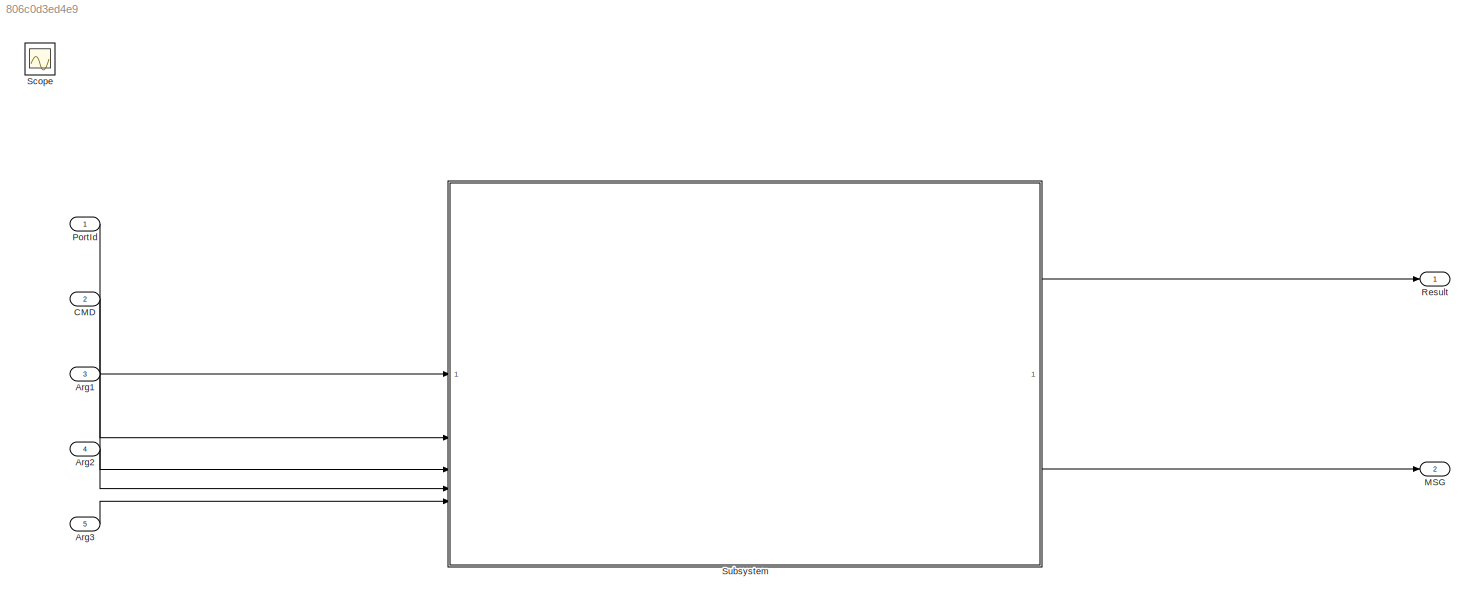
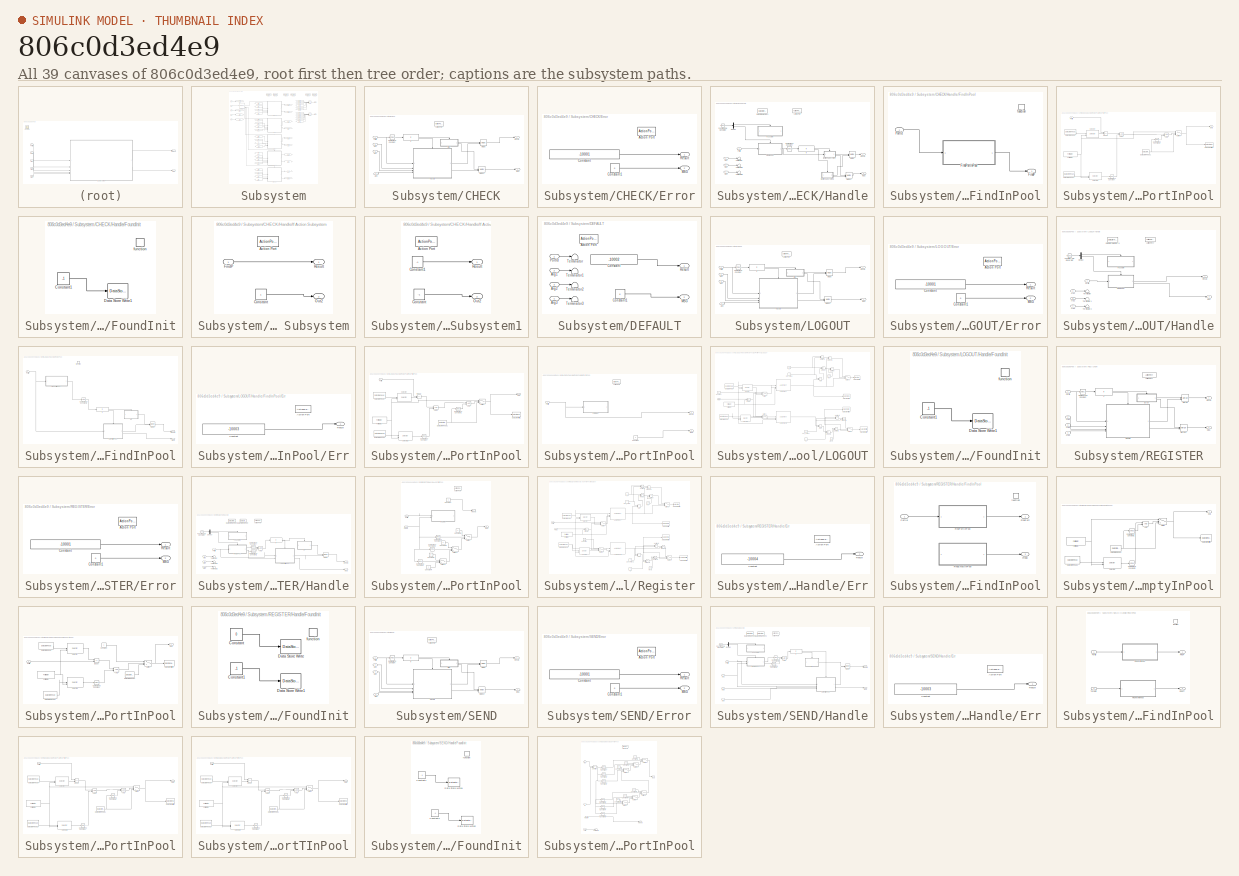
[diagram: thumbnail index - all 39 canvases of the model, root first then tree order]
MODEL slx_806c0d3ed4e9
KIND model
CONFIG AbsTol = auto
CONFIG EnableMultiTasking = off
CONFIG FixedStep = 1
CONFIG MaxStep = auto
CONFIG MinStep = auto
CONFIG RelTol = 1e-3
CONFIG SampleTimeConstraint = Unconstrained
CONFIG SolverName = FixedStepAuto
CONFIG StartTime = 0.0
CONFIG StopTime = 10.0
BLOCK [Inport] Arg1
  OutDataTypeStr = int32
  Port = 3
BLOCK [Inport] Arg2
  OutDataTypeStr = int32
  Port = 4
BLOCK [Inport] Arg3
  OutDataTypeStr = int32
  Port = 5
BLOCK [Inport] CMD
  OutDataTypeStr = int32
  Port = 2
BLOCK [Outport] MSG
  Port = 2
BLOCK [Inport] PortId
  OutDataTypeStr = int32
BLOCK [Outport] Result
BLOCK [Scope] Scope
  Floating = off
  IOType = viewer
  NumInputPorts = 1
  ScopeSpecificationString = Simulink.scopes.TimeScopeBlockCfg('CurrentConfiguration', extmgr.ConfigurationSet(extmgr.Configuration('Core','General UI',true),extmgr.Configuration('Core','Source UI',true),extmgr.Configuration('Sources','WiredSimulink',true),extmgr.Configuration('Visuals','Time Domain',true),extmgr.Configuration('Tools','Plot Navigation',true),extmgr.Configuration('Tools','Measurements',true,'Version','2022b'))...<+49ch>
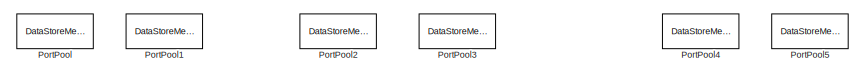
[diagram: Subsystem - part 1/4, top right region]
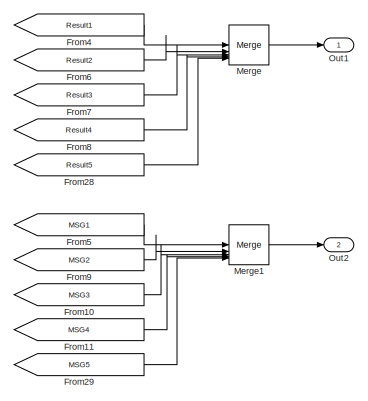
[diagram: Subsystem - part 2/4, top right region]
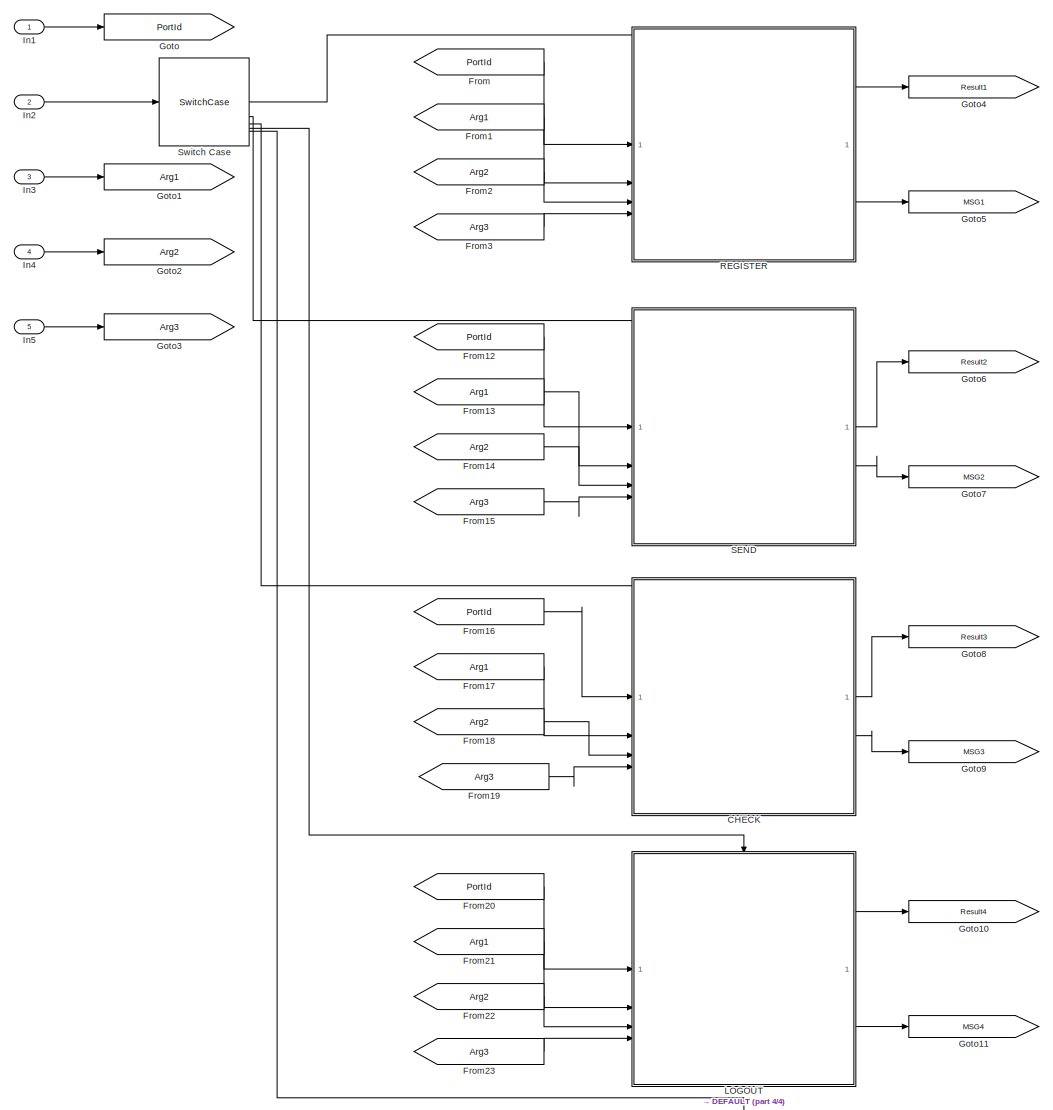
[diagram: Subsystem - part 3/4, center side, full height]
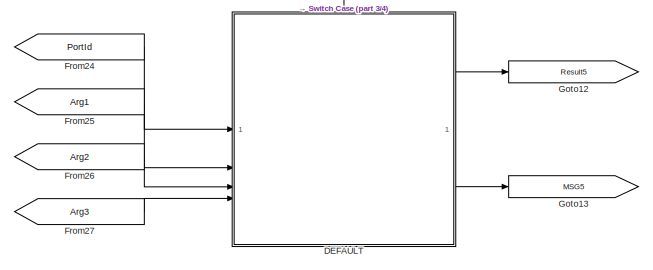
[diagram: Subsystem - part 4/4, bottom center region]
BLOCK [SubSystem] Subsystem
BLOCK [SubSystem] Subsystem/CHECK
  TreatAsAtomicUnit = on
BLOCK [ActionPort] Subsystem/CHECK/Action Port
  ActionPortLabel = case [ 10003 ]:
BLOCK [Inport] Subsystem/CHECK/Arg1
  Port = 2
BLOCK [Inport] Subsystem/CHECK/Arg2
  Port = 3
BLOCK [Inport] Subsystem/CHECK/Arg3
  Port = 4
BLOCK [Reference] Subsystem/CHECK/Compare To Constant  REF=simulink/Logic and Bit
Operations/Compare
To Constant
  SourceBlock = simulink/Logic and Bit\nOperations/Compare\nTo Constant
  SourceType = Compare To Constant
BLOCK [SubSystem] Subsystem/CHECK/Error
  TreatAsAtomicUnit = on
BLOCK [ActionPort] Subsystem/CHECK/Error/Action Port
  ActionPortLabel = if(u1 ~= 0)
BLOCK [Constant] Subsystem/CHECK/Error/Constant
  OutDataTypeStr = int32
  Value = -10001
BLOCK [Constant] Subsystem/CHECK/Error/Constant1
  OutDataTypeStr = int32
  Value = 0
BLOCK [Outport] Subsystem/CHECK/Error/MSG
  Port = 2
BLOCK [Outport] Subsystem/CHECK/Error/Result
BLOCK [SubSystem] Subsystem/CHECK/Handle
  TreatAsAtomicUnit = on
BLOCK [ActionPort] Subsystem/CHECK/Handle/Action Port
  ActionPortLabel = else
BLOCK [Inport] Subsystem/CHECK/Handle/Arg1
  Port = 2
BLOCK [Inport] Subsystem/CHECK/Handle/Arg2
  Port = 3
BLOCK [Inport] Subsystem/CHECK/Handle/Arg3
  Port = 4
BLOCK [Reference] Subsystem/CHECK/Handle/Compare To Constant  REF=simulink/Logic and Bit
Operations/Compare
To Constant
  SourceBlock = simulink/Logic and Bit\nOperations/Compare\nTo Constant
  SourceType = Compare To Constant
BLOCK [DataStoreMemory] Subsystem/CHECK/Handle/Data Store Memory1
  DataStoreName = Found_P
  InitialValue = -1
  OutDataTypeStr = int32
  ShowAdditionalParam = off
  WriteAfterWriteMsg = warning
BLOCK [Demux] Subsystem/CHECK/Handle/Demux
  Outputs = 2
BLOCK [SubSystem] Subsystem/CHECK/Handle/FindInPool
BLOCK [Outport] Subsystem/CHECK/Handle/FindInPool/FindP
BLOCK [SubSystem] Subsystem/CHECK/Handle/FindInPool/FindPortInPool
  TreatAsAtomicUnit = on
BLOCK [Logic] Subsystem/CHECK/Handle/FindInPool/FindPortInPool/AND
  AllPortsSameDT = off
  IconShape = distinctive
  OutDataTypeStr = boolean
BLOCK [Logic] Subsystem/CHECK/Handle/FindInPool/FindPortInPool/AND1
  AllPortsSameDT = off
  IconShape = distinctive
  OutDataTypeStr = boolean
BLOCK [Reference] Subsystem/CHECK/Handle/FindInPool/FindPortInPool/Compare To Constant  REF=simulink/Logic and Bit
Operations/Compare
To Constant
  SourceBlock = simulink/Logic and Bit\nOperations/Compare\nTo Constant
  SourceType = Compare To Constant
BLOCK [Reference] Subsystem/CHECK/Handle/FindInPool/FindPortInPool/Compare To Constant1  REF=simulink/Logic and Bit
Operations/Compare
To Constant
  SourceBlock = simulink/Logic and Bit\nOperations/Compare\nTo Constant
  SourceType = Compare To Constant
BLOCK [DataStoreRead] Subsystem/CHECK/Handle/FindInPool/FindPortInPool/Data Store Read
  DataStoreName = PortPool
  IndexOptions = Index vector (dialog)
  Indices = 1
  OutputSizes = 1
BLOCK [DataStoreRead] Subsystem/CHECK/Handle/FindInPool/FindPortInPool/Data Store Read1
  DataStoreName = Found_P
  IndexOptions = Index vector (dialog)
  Indices = 1
  OutputSizes = 1
BLOCK [DataStoreRead] Subsystem/CHECK/Handle/FindInPool/FindPortInPool/Data Store Read2
  DataStoreName = PortPoolF
  IndexOptions = Index vector (dialog)
  Indices = 1
  OutputSizes = 1
BLOCK [DataStoreWrite] Subsystem/CHECK/Handle/FindInPool/FindPortInPool/Data Store Write1
  DataStoreName = Found_P
  IndexOptions = Index vector (dialog)
  Indices = 1
  OutputSizes = 1
BLOCK [RelationalOperator] Subsystem/CHECK/Handle/FindInPool/FindPortInPool/Equal
  InputSameDT = off
  Operator = ==
  OutDataTypeStr = boolean
  RndMeth = Simplest
BLOCK [ForIterator] Subsystem/CHECK/Handle/FindInPool/FindPortInPool/For Iterator
  IndexMode = Zero-based
  IterationLimit = POOL_SIZE
BLOCK [Outport] Subsystem/CHECK/Handle/FindInPool/FindPortInPool/Out1
BLOCK [Inport] Subsystem/CHECK/Handle/FindInPool/FindPortInPool/PortId
BLOCK [Selector] Subsystem/CHECK/Handle/FindInPool/FindPortInPool/Selector
  IndexMode = Zero-based
  IndexOptions = Index vector (port)
  Indices = [1 3]
  InputPortWidth = POOL_SIZE
  OutputSizes = 1
BLOCK [Selector] Subsystem/CHECK/Handle/FindInPool/FindPortInPool/Selector1
  IndexMode = Zero-based
  IndexOptions = Index vector (port)
  Indices = [1 3]
  InputPortWidth = POOL_SIZE
  OutputSizes = 1
BLOCK [Switch] Subsystem/CHECK/Handle/FindInPool/FindPortInPool/Switch
  Criteria = u2 ~= 0
  InputSameDT = off
  SaturateOnIntegerOverflow = off
BLOCK [Inport] Subsystem/CHECK/Handle/FindInPool/PortId
BLOCK [TriggerPort] Subsystem/CHECK/Handle/FindInPool/function
  StatesWhenEnabling = held
  TriggerType = function-call
  VariantControl = (inherit)
BLOCK [SubSystem] Subsystem/CHECK/Handle/FoundInit
BLOCK [Constant] Subsystem/CHECK/Handle/FoundInit/Constant1
  OutDataTypeStr = int32
  Value = -1
BLOCK [DataStoreWrite] Subsystem/CHECK/Handle/FoundInit/Data Store Write1
  DataStoreName = Found_P
  IndexOptions = Index vector (dialog)
  Indices = 1
  OutputSizes = 1
BLOCK [TriggerPort] Subsystem/CHECK/Handle/FoundInit/function
  StatesWhenEnabling = held
  TriggerType = function-call
  VariantControl = (inherit)
BLOCK [Reference] Subsystem/CHECK/Handle/Function-Call Generator  REF=simulink/Ports &
Subsystems/Function-Call
Generator
  SourceBlock = simulink/Ports &\nSubsystems/Function-Call\nGenerator
  SourceType = Function-Call Generator
BLOCK [If] Subsystem/CHECK/Handle/If
  IfExpression = u1 ~= 0
BLOCK [SubSystem] Subsystem/CHECK/Handle/If Action Subsystem
  TreatAsAtomicUnit = on
BLOCK [ActionPort] Subsystem/CHECK/Handle/If Action Subsystem/Action Port
  ActionPortLabel = if(u1 ~= 0)
BLOCK [Constant] Subsystem/CHECK/Handle/If Action Subsystem/Constant
  OutDataTypeStr = int32
BLOCK [Inport] Subsystem/CHECK/Handle/If Action Subsystem/FindP
BLOCK [Outport] Subsystem/CHECK/Handle/If Action Subsystem/Out2
  Port = 2
BLOCK [Outport] Subsystem/CHECK/Handle/If Action Subsystem/Result
BLOCK [SubSystem] Subsystem/CHECK/Handle/If Action Subsystem1
  TreatAsAtomicUnit = on
BLOCK [ActionPort] Subsystem/CHECK/Handle/If Action Subsystem1/Action Port
  ActionPortLabel = else
BLOCK [Constant] Subsystem/CHECK/Handle/If Action Subsystem1/Constant
  OutDataTypeStr = int32
  Value = -1
BLOCK [Constant] Subsystem/CHECK/Handle/If Action Subsystem1/Constant1
  OutDataTypeStr = int32
  Value = -1
BLOCK [Outport] Subsystem/CHECK/Handle/If Action Subsystem1/Out2
  Port = 2
BLOCK [Outport] Subsystem/CHECK/Handle/If Action Subsystem1/Result
BLOCK [Outport] Subsystem/CHECK/Handle/MSG
  Port = 2
BLOCK [Merge] Subsystem/CHECK/Handle/Merge
BLOCK [Merge] Subsystem/CHECK/Handle/Merge1
BLOCK [Inport] Subsystem/CHECK/Handle/PortId
BLOCK [Outport] Subsystem/CHECK/Handle/Result
BLOCK [Terminator] Subsystem/CHECK/Handle/Terminator
BLOCK [Terminator] Subsystem/CHECK/Handle/Terminator1
BLOCK [Terminator] Subsystem/CHECK/Handle/Terminator2
BLOCK [If] Subsystem/CHECK/If
  IfExpression = u1 ~= 0
BLOCK [Outport] Subsystem/CHECK/MSG
  Port = 2
BLOCK [Merge] Subsystem/CHECK/Merge
BLOCK [Merge] Subsystem/CHECK/Merge1
BLOCK [Inport] Subsystem/CHECK/PortId
BLOCK [Outport] Subsystem/CHECK/Result
BLOCK [SubSystem] Subsystem/DEFAULT
  TreatAsAtomicUnit = on
BLOCK [ActionPort] Subsystem/DEFAULT/Action Port
  ActionPortLabel = default:
BLOCK [Inport] Subsystem/DEFAULT/Arg1
  Port = 2
BLOCK [Inport] Subsystem/DEFAULT/Arg2
  Port = 3
BLOCK [Inport] Subsystem/DEFAULT/Arg3
  Port = 4
BLOCK [Constant] Subsystem/DEFAULT/Constant
  OutDataTypeStr = int32
  Value = -10002
BLOCK [Constant] Subsystem/DEFAULT/Constant1
  OutDataTypeStr = int32
  Value = 0
BLOCK [Outport] Subsystem/DEFAULT/MSG
  Port = 2
BLOCK [Inport] Subsystem/DEFAULT/PortId
BLOCK [Outport] Subsystem/DEFAULT/Result
BLOCK [Terminator] Subsystem/DEFAULT/Terminator
BLOCK [Terminator] Subsystem/DEFAULT/Terminator1
BLOCK [Terminator] Subsystem/DEFAULT/Terminator2
BLOCK [Terminator] Subsystem/DEFAULT/Terminator3
BLOCK [From] Subsystem/From
  GotoTag = PortId
BLOCK [From] Subsystem/From1
  GotoTag = Arg1
BLOCK [From] Subsystem/From10
  GotoTag = MSG3
BLOCK [From] Subsystem/From11
  GotoTag = MSG4
BLOCK [From] Subsystem/From12
  GotoTag = PortId
BLOCK [From] Subsystem/From13
  GotoTag = Arg1
BLOCK [From] Subsystem/From14
  GotoTag = Arg2
BLOCK [From] Subsystem/From15
  GotoTag = Arg3
BLOCK [From] Subsystem/From16
  GotoTag = PortId
BLOCK [From] Subsystem/From17
  GotoTag = Arg1
BLOCK [From] Subsystem/From18
  GotoTag = Arg2
BLOCK [From] Subsystem/From19
  GotoTag = Arg3
BLOCK [From] Subsystem/From2
  GotoTag = Arg2
BLOCK [From] Subsystem/From20
  GotoTag = PortId
BLOCK [From] Subsystem/From21
  GotoTag = Arg1
BLOCK [From] Subsystem/From22
  GotoTag = Arg2
BLOCK [From] Subsystem/From23
  GotoTag = Arg3
BLOCK [From] Subsystem/From24
  GotoTag = PortId
BLOCK [From] Subsystem/From25
  GotoTag = Arg1
BLOCK [From] Subsystem/From26
  GotoTag = Arg2
BLOCK [From] Subsystem/From27
  GotoTag = Arg3
BLOCK [From] Subsystem/From28
  GotoTag = Result5
BLOCK [From] Subsystem/From29
  GotoTag = MSG5
BLOCK [From] Subsystem/From3
  GotoTag = Arg3
BLOCK [From] Subsystem/From4
  GotoTag = Result1
BLOCK [From] Subsystem/From5
  GotoTag = MSG1
BLOCK [From] Subsystem/From6
  GotoTag = Result2
BLOCK [From] Subsystem/From7
  GotoTag = Result3
BLOCK [From] Subsystem/From8
  GotoTag = Result4
BLOCK [From] Subsystem/From9
  GotoTag = MSG2
BLOCK [Goto] Subsystem/Goto
  GotoTag = PortId
BLOCK [Goto] Subsystem/Goto1
  GotoTag = Arg1
BLOCK [Goto] Subsystem/Goto10
  GotoTag = Result4
BLOCK [Goto] Subsystem/Goto11
  GotoTag = MSG4
BLOCK [Goto] Subsystem/Goto12
  GotoTag = Result5
BLOCK [Goto] Subsystem/Goto13
  GotoTag = MSG5
BLOCK [Goto] Subsystem/Goto2
  GotoTag = Arg2
BLOCK [Goto] Subsystem/Goto3
  GotoTag = Arg3
BLOCK [Goto] Subsystem/Goto4
  GotoTag = Result1
BLOCK [Goto] Subsystem/Goto5
  GotoTag = MSG1
BLOCK [Goto] Subsystem/Goto6
  GotoTag = Result2
BLOCK [Goto] Subsystem/Goto7
  GotoTag = MSG2
BLOCK [Goto] Subsystem/Goto8
  GotoTag = Result3
BLOCK [Goto] Subsystem/Goto9
  GotoTag = MSG3
BLOCK [Inport] Subsystem/In1
BLOCK [Inport] Subsystem/In2
  Port = 2
BLOCK [Inport] Subsystem/In3
  Port = 3
BLOCK [Inport] Subsystem/In4
  Port = 4
BLOCK [Inport] Subsystem/In5
  Port = 5
BLOCK [SubSystem] Subsystem/LOGOUT
  TreatAsAtomicUnit = on
BLOCK [ActionPort] Subsystem/LOGOUT/Action Port
  ActionPortLabel = case [ 10004 ]:
BLOCK [Inport] Subsystem/LOGOUT/Arg1
  Port = 2
BLOCK [Inport] Subsystem/LOGOUT/Arg2
  Port = 3
BLOCK [Inport] Subsystem/LOGOUT/Arg3
  Port = 4
BLOCK [Reference] Subsystem/LOGOUT/Compare To Constant  REF=simulink/Logic and Bit
Operations/Compare
To Constant
  SourceBlock = simulink/Logic and Bit\nOperations/Compare\nTo Constant
  SourceType = Compare To Constant
BLOCK [SubSystem] Subsystem/LOGOUT/Error
  TreatAsAtomicUnit = on
BLOCK [ActionPort] Subsystem/LOGOUT/Error/Action Port
  ActionPortLabel = if(u1 ~= 0)
BLOCK [Constant] Subsystem/LOGOUT/Error/Constant
  OutDataTypeStr = int32
  Value = -10001
BLOCK [Constant] Subsystem/LOGOUT/Error/Constant1
  OutDataTypeStr = int32
  Value = 0
BLOCK [Outport] Subsystem/LOGOUT/Error/MSG
  Port = 2
BLOCK [Outport] Subsystem/LOGOUT/Error/Result
BLOCK [SubSystem] Subsystem/LOGOUT/Handle
  TreatAsAtomicUnit = on
BLOCK [ActionPort] Subsystem/LOGOUT/Handle/Action Port
  ActionPortLabel = else
BLOCK [Inport] Subsystem/LOGOUT/Handle/Arg1
  Port = 2
BLOCK [Inport] Subsystem/LOGOUT/Handle/Arg2
  Port = 3
BLOCK [Inport] Subsystem/LOGOUT/Handle/Arg3
  Port = 4
BLOCK [DataStoreMemory] Subsystem/LOGOUT/Handle/Data Store Memory1
  DataStoreName = Found_P
  InitialValue = -1
  OutDataTypeStr = int32
  ShowAdditionalParam = off
  WriteAfterWriteMsg = warning
BLOCK [Demux] Subsystem/LOGOUT/Handle/Demux
  Outputs = 2
BLOCK [SubSystem] Subsystem/LOGOUT/Handle/FindInPool
BLOCK [Reference] Subsystem/LOGOUT/Handle/FindInPool/Compare To Constant1  REF=simulink/Logic and Bit
Operations/Compare
To Constant
  SourceBlock = simulink/Logic and Bit\nOperations/Compare\nTo Constant
  SourceType = Compare To Constant
BLOCK [SubSystem] Subsystem/LOGOUT/Handle/FindInPool/Err
  TreatAsAtomicUnit = on
BLOCK [ActionPort] Subsystem/LOGOUT/Handle/FindInPool/Err/Action Port
  ActionPortLabel = if(u1 ~= 0)
BLOCK [Constant] Subsystem/LOGOUT/Handle/FindInPool/Err/Constant
  OutDataTypeStr = int32
  Value = -10003
BLOCK [Outport] Subsystem/LOGOUT/Handle/FindInPool/Err/Result
BLOCK [SubSystem] Subsystem/LOGOUT/Handle/FindInPool/FindPortInPool
  TreatAsAtomicUnit = on
BLOCK [Logic] Subsystem/LOGOUT/Handle/FindInPool/FindPortInPool/AND
  AllPortsSameDT = off
  IconShape = distinctive
  OutDataTypeStr = boolean
BLOCK [Logic] Subsystem/LOGOUT/Handle/FindInPool/FindPortInPool/AND1
  AllPortsSameDT = off
  IconShape = distinctive
  OutDataTypeStr = boolean
BLOCK [Reference] Subsystem/LOGOUT/Handle/FindInPool/FindPortInPool/Compare To Constant  REF=simulink/Logic and Bit
Operations/Compare
To Constant
  SourceBlock = simulink/Logic and Bit\nOperations/Compare\nTo Constant
  SourceType = Compare To Constant
BLOCK [Reference] Subsystem/LOGOUT/Handle/FindInPool/FindPortInPool/Compare To Constant1  REF=simulink/Logic and Bit
Operations/Compare
To Constant
  SourceBlock = simulink/Logic and Bit\nOperations/Compare\nTo Constant
  SourceType = Compare To Constant
BLOCK [DataStoreRead] Subsystem/LOGOUT/Handle/FindInPool/FindPortInPool/Data Store Read
  DataStoreName = PortPool
  IndexOptions = Index vector (dialog)
  Indices = 1
  OutputSizes = 1
BLOCK [DataStoreRead] Subsystem/LOGOUT/Handle/FindInPool/FindPortInPool/Data Store Read1
  DataStoreName = Found_P
  IndexOptions = Index vector (dialog)
  Indices = 1
  OutputSizes = 1
BLOCK [DataStoreRead] Subsystem/LOGOUT/Handle/FindInPool/FindPortInPool/Data Store Read2
  DataStoreName = PortPoolF
  IndexOptions = Index vector (dialog)
  Indices = 1
  OutputSizes = 1
BLOCK [DataStoreWrite] Subsystem/LOGOUT/Handle/FindInPool/FindPortInPool/Data Store Write1
  DataStoreName = Found_P
  IndexOptions = Index vector (dialog)
  Indices = 1
  OutputSizes = 1
BLOCK [RelationalOperator] Subsystem/LOGOUT/Handle/FindInPool/FindPortInPool/Equal
  InputSameDT = off
  Operator = ==
  OutDataTypeStr = boolean
  RndMeth = Simplest
BLOCK [ForIterator] Subsystem/LOGOUT/Handle/FindInPool/FindPortInPool/For Iterator
  IndexMode = Zero-based
  IterationLimit = POOL_SIZE
BLOCK [Outport] Subsystem/LOGOUT/Handle/FindInPool/FindPortInPool/Out1
BLOCK [Inport] Subsystem/LOGOUT/Handle/FindInPool/FindPortInPool/PortId
BLOCK [Selector] Subsystem/LOGOUT/Handle/FindInPool/FindPortInPool/Selector
  IndexMode = Zero-based
  IndexOptions = Index vector (port)
  Indices = [1 3]
  InputPortWidth = POOL_SIZE
  OutputSizes = 1
BLOCK [Selector] Subsystem/LOGOUT/Handle/FindInPool/FindPortInPool/Selector1
  IndexMode = Zero-based
  IndexOptions = Index vector (port)
  Indices = [1 3]
  InputPortWidth = POOL_SIZE
  OutputSizes = 1
BLOCK [Switch] Subsystem/LOGOUT/Handle/FindInPool/FindPortInPool/Switch
  Criteria = u2 ~= 0
  InputSameDT = off
  SaturateOnIntegerOverflow = off
BLOCK [If] Subsystem/LOGOUT/Handle/FindInPool/If
  IfExpression = u1 ~= 0
BLOCK [Outport] Subsystem/LOGOUT/Handle/FindInPool/MSG
  Port = 2
BLOCK [Merge] Subsystem/LOGOUT/Handle/FindInPool/Merge
BLOCK [Inport] Subsystem/LOGOUT/Handle/FindInPool/PortId
BLOCK [Outport] Subsystem/LOGOUT/Handle/FindInPool/Result
BLOCK [SubSystem] Subsystem/LOGOUT/Handle/FindInPool/SetPortInPool
  TreatAsAtomicUnit = on
BLOCK [ActionPort] Subsystem/LOGOUT/Handle/FindInPool/SetPortInPool/Action Port
  ActionPortLabel = else
BLOCK [Constant] Subsystem/LOGOUT/Handle/FindInPool/SetPortInPool/Constant
  OutDataTypeStr = int32
BLOCK [SubSystem] Subsystem/LOGOUT/Handle/FindInPool/SetPortInPool/LOGOUT
  TreatAsAtomicUnit = on
BLOCK [Sum] Subsystem/LOGOUT/Handle/FindInPool/SetPortInPool/LOGOUT/Add
  IconShape = rectangular
BLOCK [Sum] Subsystem/LOGOUT/Handle/FindInPool/SetPortInPool/LOGOUT/Add1
  IconShape = rectangular
BLOCK [Assignment] Subsystem/LOGOUT/Handle/FindInPool/SetPortInPool/LOGOUT/Assignment
  DiagnosticForDimensions = Warning
  IndexMode = Zero-based
  IndexOptions = Index vector (port)
  Indices = 1
  OutputSizes = 1
BLOCK [Assignment] Subsystem/LOGOUT/Handle/FindInPool/SetPortInPool/LOGOUT/Assignment1
  DiagnosticForDimensions = Warning
  IndexMode = Zero-based
  IndexOptions = Index vector (port)
  Indices = 1
  OutputSizes = 1
BLOCK [Constant] Subsystem/LOGOUT/Handle/FindInPool/SetPortInPool/LOGOUT/Con_Value
  OutDataTypeStr = int32
  Value = 7
BLOCK [Constant] Subsystem/LOGOUT/Handle/FindInPool/SetPortInPool/LOGOUT/Con_Value1
  OutDataTypeStr = int32
  Value = 9
BLOCK [Constant] Subsystem/LOGOUT/Handle/FindInPool/SetPortInPool/LOGOUT/Constant
  OutDataTypeStr = int32
  Value = 0
BLOCK [DataStoreRead] Subsystem/LOGOUT/Handle/FindInPool/SetPortInPool/LOGOUT/Data Store Read
  DataStoreName = PortPool
  IndexOptions = Index vector (dialog)
  Indices = 1
  OutputSizes = 1
BLOCK [DataStoreRead] Subsystem/LOGOUT/Handle/FindInPool/SetPortInPool/LOGOUT/Data Store Read2
  DataStoreName = PortPoolF
  IndexOptions = Index vector (dialog)
  Indices = 1
  OutputSizes = 1
BLOCK [DataStoreWrite] Subsystem/LOGOUT/Handle/FindInPool/SetPortInPool/LOGOUT/Data Store Write2
  DataStoreName = PortPool
  IndexOptions = Index vector (dialog)
  Indices = 1
  OutputSizes = 1
BLOCK [DataStoreWrite] Subsystem/LOGOUT/Handle/FindInPool/SetPortInPool/LOGOUT/Data Store Write3
  DataStoreName = PortPoolF
  IndexOptions = Index vector (dialog)
  Indices = 1
  OutputSizes = 1
BLOCK [DataStoreWrite] Subsystem/LOGOUT/Handle/FindInPool/SetPortInPool/LOGOUT/Data Store Write4
  DataStoreName = PortConfound
  IndexOptions = Index vector (dialog)
  Indices = 1
  OutputSizes = 1
BLOCK [DataStoreWrite] Subsystem/LOGOUT/Handle/FindInPool/SetPortInPool/LOGOUT/Data Store Write5
  DataStoreName = PortConfoundF
  IndexOptions = Index vector (dialog)
  Indices = 1
  OutputSizes = 1
BLOCK [RelationalOperator] Subsystem/LOGOUT/Handle/FindInPool/SetPortInPool/LOGOUT/Equal
  InputSameDT = off
  Operator = ==
  OutDataTypeStr = boolean
  RndMeth = Simplest
BLOCK [Inport] Subsystem/LOGOUT/Handle/FindInPool/SetPortInPool/LOGOUT/FindP
BLOCK [ForIterator] Subsystem/LOGOUT/Handle/FindInPool/SetPortInPool/LOGOUT/For Iterator
  IndexMode = Zero-based
  IterationLimit = POOL_SIZE
BLOCK [Product] Subsystem/LOGOUT/Handle/FindInPool/SetPortInPool/LOGOUT/Product
  OutDataTypeStr = int32
BLOCK [Product] Subsystem/LOGOUT/Handle/FindInPool/SetPortInPool/LOGOUT/Product1
  OutDataTypeStr = int32
BLOCK [Product] Subsystem/LOGOUT/Handle/FindInPool/SetPortInPool/LOGOUT/Product2
  OutDataTypeStr = int32
BLOCK [Product] Subsystem/LOGOUT/Handle/FindInPool/SetPortInPool/LOGOUT/Product3
  OutDataTypeStr = int32
BLOCK [Selector] Subsystem/LOGOUT/Handle/FindInPool/SetPortInPool/LOGOUT/Selector
  IndexMode = Zero-based
  IndexOptions = Index vector (port)
  Indices = [1 3]
  InputPortWidth = POOL_SIZE
  OutputSizes = 1
BLOCK [Selector] Subsystem/LOGOUT/Handle/FindInPool/SetPortInPool/LOGOUT/Selector1
  IndexMode = Zero-based
  IndexOptions = Index vector (port)
  Indices = [1 3]
  InputPortWidth = POOL_SIZE
  OutputSizes = 1
BLOCK [Sum] Subsystem/LOGOUT/Handle/FindInPool/SetPortInPool/LOGOUT/Subtract
  IconShape = rectangular
  Inputs = +-
BLOCK [Sum] Subsystem/LOGOUT/Handle/FindInPool/SetPortInPool/LOGOUT/Subtract1
  IconShape = rectangular
  Inputs = +-
BLOCK [Sum] Subsystem/LOGOUT/Handle/FindInPool/SetPortInPool/LOGOUT/Subtract2
  IconShape = rectangular
  Inputs = +-
BLOCK [Sum] Subsystem/LOGOUT/Handle/FindInPool/SetPortInPool/LOGOUT/Subtract3
  IconShape = rectangular
  Inputs = +-
BLOCK [Switch] Subsystem/LOGOUT/Handle/FindInPool/SetPortInPool/LOGOUT/Switch
  Criteria = u2 > Threshold
  InputSameDT = off
  SaturateOnIntegerOverflow = off
BLOCK [Switch] Subsystem/LOGOUT/Handle/FindInPool/SetPortInPool/LOGOUT/Switch1
  Criteria = u2 > Threshold
  InputSameDT = off
  SaturateOnIntegerOverflow = off
BLOCK [Switch] Subsystem/LOGOUT/Handle/FindInPool/SetPortInPool/LOGOUT/Switch2
  Criteria = u2 > Threshold
  InputSameDT = off
  SaturateOnIntegerOverflow = off
  Threshold = 1000
BLOCK [Switch] Subsystem/LOGOUT/Handle/FindInPool/SetPortInPool/LOGOUT/Switch3
  Criteria = u2 > Threshold
  InputSameDT = off
  SaturateOnIntegerOverflow = off
  Threshold = 1000
BLOCK [Constant] Subsystem/LOGOUT/Handle/FindInPool/SetPortInPool/LOGOUT/T
  OutDataTypeStr = int32
  Value = 11
BLOCK [Constant] Subsystem/LOGOUT/Handle/FindInPool/SetPortInPool/LOGOUT/T1
  OutDataTypeStr = int32
  Value = 5
BLOCK [Constant] Subsystem/LOGOUT/Handle/FindInPool/SetPortInPool/LOGOUT/key
  OutDataTypeStr = int32
  Value = 1004
BLOCK [Constant] Subsystem/LOGOUT/Handle/FindInPool/SetPortInPool/LOGOUT/key1
  OutDataTypeStr = int32
  Value = 1003
BLOCK [Outport] Subsystem/LOGOUT/Handle/FindInPool/SetPortInPool/MSG
  Port = 2
BLOCK [Inport] Subsystem/LOGOUT/Handle/FindInPool/SetPortInPool/PortId
BLOCK [Outport] Subsystem/LOGOUT/Handle/FindInPool/SetPortInPool/Result
BLOCK [TriggerPort] Subsystem/LOGOUT/Handle/FindInPool/function
  StatesWhenEnabling = held
  TriggerType = function-call
  VariantControl = (inherit)
BLOCK [SubSystem] Subsystem/LOGOUT/Handle/FoundInit
BLOCK [Constant] Subsystem/LOGOUT/Handle/FoundInit/Constant1
  OutDataTypeStr = int32
  Value = -1
BLOCK [DataStoreWrite] Subsystem/LOGOUT/Handle/FoundInit/Data Store Write1
  DataStoreName = Found_P
  IndexOptions = Index vector (dialog)
  Indices = 1
  OutputSizes = 1
BLOCK [TriggerPort] Subsystem/LOGOUT/Handle/FoundInit/function
  StatesWhenEnabling = held
  TriggerType = function-call
  VariantControl = (inherit)
BLOCK [Reference] Subsystem/LOGOUT/Handle/Function-Call Generator  REF=simulink/Ports &
Subsystems/Function-Call
Generator
  SourceBlock = simulink/Ports &\nSubsystems/Function-Call\nGenerator
  SourceType = Function-Call Generator
BLOCK [Outport] Subsystem/LOGOUT/Handle/MSG
  Port = 2
BLOCK [Inport] Subsystem/LOGOUT/Handle/PortId
BLOCK [Outport] Subsystem/LOGOUT/Handle/Result
BLOCK [Terminator] Subsystem/LOGOUT/Handle/Terminator
BLOCK [Terminator] Subsystem/LOGOUT/Handle/Terminator1
BLOCK [Terminator] Subsystem/LOGOUT/Handle/Terminator2
BLOCK [If] Subsystem/LOGOUT/If
  IfExpression = u1 ~= 0
BLOCK [Outport] Subsystem/LOGOUT/MSG
  Port = 2
BLOCK [Merge] Subsystem/LOGOUT/Merge
BLOCK [Merge] Subsystem/LOGOUT/Merge1
BLOCK [Inport] Subsystem/LOGOUT/PortId
BLOCK [Outport] Subsystem/LOGOUT/Result
BLOCK [Merge] Subsystem/Merge
  Inputs = 5
BLOCK [Merge] Subsystem/Merge1
  Inputs = 5
BLOCK [Outport] Subsystem/Out1
BLOCK [Outport] Subsystem/Out2
  Port = 2
BLOCK [DataStoreMemory] Subsystem/PortPool
  DataStoreName = PortPool
  Dimensions = POOL_SIZE
  OutDataTypeStr = int32
  ShowAdditionalParam = off
  WriteAfterWriteMsg = warning
BLOCK [DataStoreMemory] Subsystem/PortPool1
  DataStoreName = PortPoolF
  Dimensions = POOL_SIZE
  OutDataTypeStr = int32
  ShowAdditionalParam = off
  WriteAfterWriteMsg = warning
BLOCK [DataStoreMemory] Subsystem/PortPool2
  DataStoreName = PortConfound
  Dimensions = POOL_SIZE
  OutDataTypeStr = int32
  ShowAdditionalParam = off
  WriteAfterWriteMsg = warning
BLOCK [DataStoreMemory] Subsystem/PortPool3
  DataStoreName = PortConfoundF
  Dimensions = POOL_SIZE
  OutDataTypeStr = int32
  ShowAdditionalParam = off
  WriteAfterWriteMsg = warning
BLOCK [DataStoreMemory] Subsystem/PortPool4
  DataStoreName = Bright
  Dimensions = POOL_SIZE
  OutDataTypeStr = int32
  ShowAdditionalParam = off
  WriteAfterWriteMsg = warning
BLOCK [DataStoreMemory] Subsystem/PortPool5
  DataStoreName = BrightF
  Dimensions = POOL_SIZE
  OutDataTypeStr = int32
  ShowAdditionalParam = off
  WriteAfterWriteMsg = warning
BLOCK [SubSystem] Subsystem/REGISTER
  TreatAsAtomicUnit = on
BLOCK [ActionPort] Subsystem/REGISTER/Action Port
  ActionPortLabel = case [ 10001 ]:
BLOCK [Inport] Subsystem/REGISTER/Arg1
  Port = 2
BLOCK [Inport] Subsystem/REGISTER/Arg2
  Port = 3
BLOCK [Inport] Subsystem/REGISTER/Arg3
  Port = 4
BLOCK [Reference] Subsystem/REGISTER/Compare To Constant  REF=simulink/Logic and Bit
Operations/Compare
To Constant
  SourceBlock = simulink/Logic and Bit\nOperations/Compare\nTo Constant
  SourceType = Compare To Constant
BLOCK [SubSystem] Subsystem/REGISTER/Error
  TreatAsAtomicUnit = on
BLOCK [ActionPort] Subsystem/REGISTER/Error/Action Port
  ActionPortLabel = if(u1 ~= 0)
BLOCK [Constant] Subsystem/REGISTER/Error/Constant
  OutDataTypeStr = int32
  Value = -10001
BLOCK [Constant] Subsystem/REGISTER/Error/Constant1
  OutDataTypeStr = int32
  Value = 0
BLOCK [Outport] Subsystem/REGISTER/Error/MSG
  Port = 2
BLOCK [Outport] Subsystem/REGISTER/Error/Result
BLOCK [SubSystem] Subsystem/REGISTER/Handle
  TreatAsAtomicUnit = on
BLOCK [Logic] Subsystem/REGISTER/Handle/AND
  AllPortsSameDT = off
  IconShape = distinctive
  OutDataTypeStr = boolean
BLOCK [ActionPort] Subsystem/REGISTER/Handle/Action Port
  ActionPortLabel = else
BLOCK [SubSystem] Subsystem/REGISTER/Handle/AddPortInPool
  TreatAsAtomicUnit = on
BLOCK [ActionPort] Subsystem/REGISTER/Handle/AddPortInPool/Action Port
  ActionPortLabel = if(u1 ~= 0)
BLOCK [Reference] Subsystem/REGISTER/Handle/AddPortInPool/Compare To Constant  REF=simulink/Logic and Bit
Operations/Compare
To Constant
  SourceBlock = simulink/Logic and Bit\nOperations/Compare\nTo Constant
  SourceType = Compare To Constant
BLOCK [Reference] Subsystem/REGISTER/Handle/AddPortInPool/Compare To Constant1  REF=simulink/Logic and Bit
Operations/Compare
To Constant
  SourceBlock = simulink/Logic and Bit\nOperations/Compare\nTo Constant
  SourceType = Compare To Constant
BLOCK [Reference] Subsystem/REGISTER/Handle/AddPortInPool/Compare To Constant2  REF=simulink/Logic and Bit
Operations/Compare
To Constant
  SourceBlock = simulink/Logic and Bit\nOperations/Compare\nTo Constant
  SourceType = Compare To Constant
BLOCK [Constant] Subsystem/REGISTER/Handle/AddPortInPool/Constant
  OutDataTypeStr = int32
BLOCK [Constant] Subsystem/REGISTER/Handle/AddPortInPool/Constant1
  OutDataTypeStr = int32
BLOCK [Constant] Subsystem/REGISTER/Handle/AddPortInPool/Constant2
  OutDataTypeStr = int32
  Value = 2
BLOCK [Constant] Subsystem/REGISTER/Handle/AddPortInPool/Constant3
  OutDataTypeStr = int32
  Value = 3
BLOCK [Constant] Subsystem/REGISTER/Handle/AddPortInPool/Constant4
  OutDataTypeStr = int32
  Value = 4
BLOCK [Inport] Subsystem/REGISTER/Handle/AddPortInPool/FindE
  Port = 2
BLOCK [Outport] Subsystem/REGISTER/Handle/AddPortInPool/MSG
  Port = 2
BLOCK [Inport] Subsystem/REGISTER/Handle/AddPortInPool/PortId
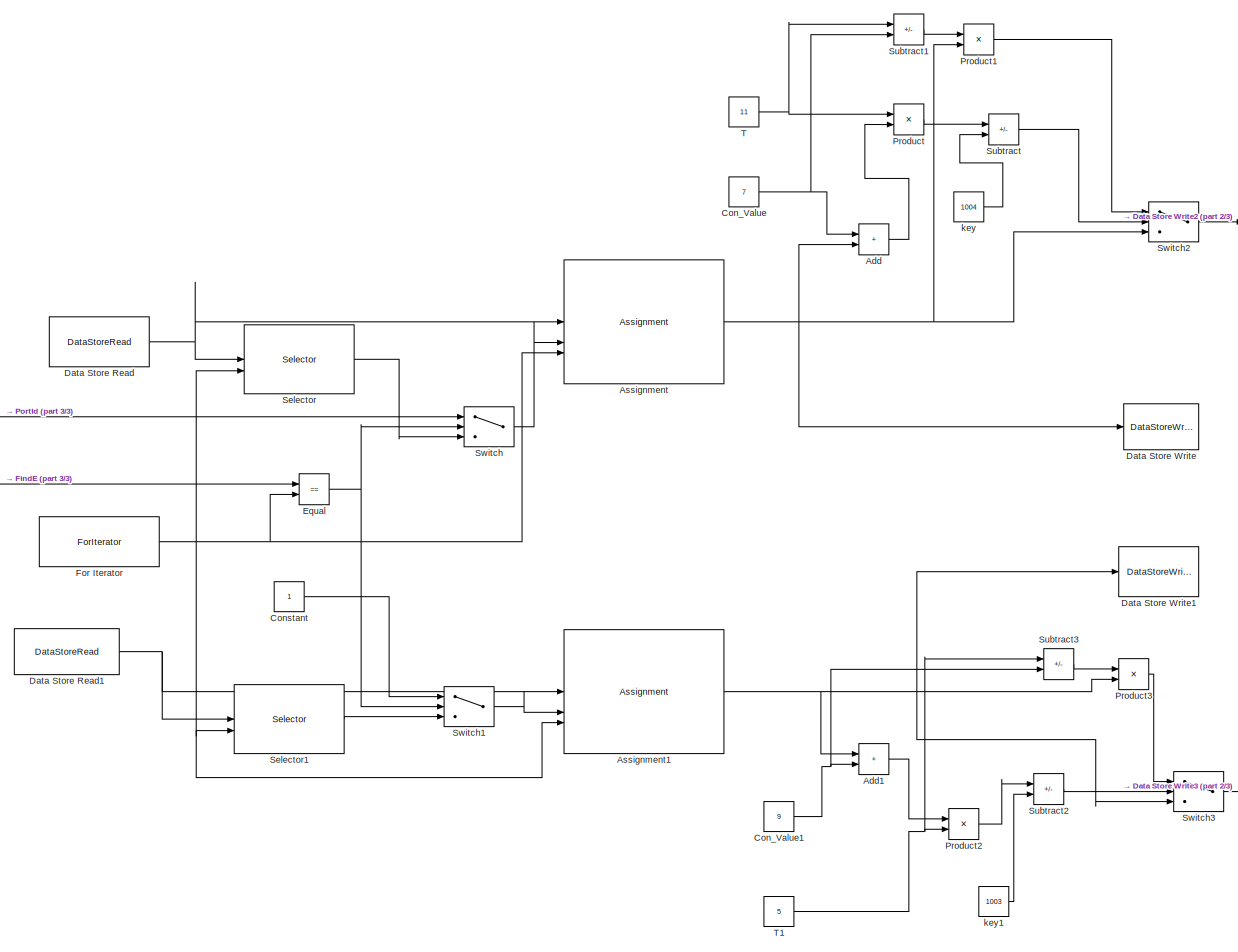
[diagram: Subsystem/REGISTER/Handle/AddPortInPool/Register - part 1/3, most of the canvas]
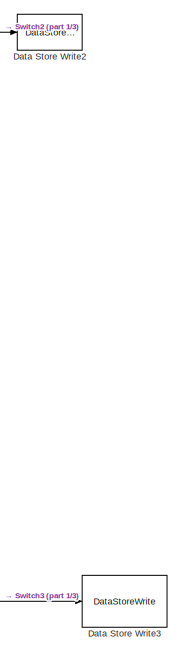
[diagram: Subsystem/REGISTER/Handle/AddPortInPool/Register - part 2/3, middle right region]
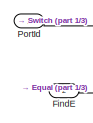
[diagram: Subsystem/REGISTER/Handle/AddPortInPool/Register - part 3/3, middle left region]
BLOCK [SubSystem] Subsystem/REGISTER/Handle/AddPortInPool/Register
  TreatAsAtomicUnit = on
BLOCK [Sum] Subsystem/REGISTER/Handle/AddPortInPool/Register/Add
  IconShape = rectangular
BLOCK [Sum] Subsystem/REGISTER/Handle/AddPortInPool/Register/Add1
  IconShape = rectangular
BLOCK [Assignment] Subsystem/REGISTER/Handle/AddPortInPool/Register/Assignment
  DiagnosticForDimensions = Warning
  IndexMode = Zero-based
  IndexOptions = Index vector (port)
  Indices = 1
  OutputSizes = 1
BLOCK [Assignment] Subsystem/REGISTER/Handle/AddPortInPool/Register/Assignment1
  DiagnosticForDimensions = Warning
  IndexMode = Zero-based
  IndexOptions = Index vector (port)
  Indices = 1
  OutputSizes = 1
BLOCK [Constant] Subsystem/REGISTER/Handle/AddPortInPool/Register/Con_Value
  OutDataTypeStr = int32
  Value = 7
BLOCK [Constant] Subsystem/REGISTER/Handle/AddPortInPool/Register/Con_Value1
  OutDataTypeStr = int32
  Value = 9
BLOCK [Constant] Subsystem/REGISTER/Handle/AddPortInPool/Register/Constant
  OutDataTypeStr = int32
BLOCK [DataStoreRead] Subsystem/REGISTER/Handle/AddPortInPool/Register/Data Store Read
  DataStoreName = PortPool
  IndexOptions = Index vector (dialog)
  Indices = 1
  OutputSizes = 1
BLOCK [DataStoreRead] Subsystem/REGISTER/Handle/AddPortInPool/Register/Data Store Read1
  DataStoreName = PortPoolF
  IndexOptions = Index vector (dialog)
  Indices = 1
  OutputSizes = 1
BLOCK [DataStoreWrite] Subsystem/REGISTER/Handle/AddPortInPool/Register/Data Store Write
  DataStoreName = PortPool
  IndexOptions = Index vector (dialog)
  Indices = 1
  OutputSizes = 1
BLOCK [DataStoreWrite] Subsystem/REGISTER/Handle/AddPortInPool/Register/Data Store Write1
  DataStoreName = PortPoolF
  IndexOptions = Index vector (dialog)
  Indices = 1
  OutputSizes = 1
BLOCK [DataStoreWrite] Subsystem/REGISTER/Handle/AddPortInPool/Register/Data Store Write2
  DataStoreName = PortConfound
  IndexOptions = Index vector (dialog)
  Indices = 1
  OutputSizes = 1
BLOCK [DataStoreWrite] Subsystem/REGISTER/Handle/AddPortInPool/Register/Data Store Write3
  DataStoreName = PortConfoundF
  IndexOptions = Index vector (dialog)
  Indices = 1
  OutputSizes = 1
BLOCK [RelationalOperator] Subsystem/REGISTER/Handle/AddPortInPool/Register/Equal
  InputSameDT = off
  Operator = ==
  OutDataTypeStr = boolean
  RndMeth = Simplest
BLOCK [Inport] Subsystem/REGISTER/Handle/AddPortInPool/Register/FindE
  Port = 2
BLOCK [ForIterator] Subsystem/REGISTER/Handle/AddPortInPool/Register/For Iterator
  IndexMode = Zero-based
  IterationLimit = POOL_SIZE
BLOCK [Inport] Subsystem/REGISTER/Handle/AddPortInPool/Register/PortId
BLOCK [Product] Subsystem/REGISTER/Handle/AddPortInPool/Register/Product
  OutDataTypeStr = int32
BLOCK [Product] Subsystem/REGISTER/Handle/AddPortInPool/Register/Product1
  OutDataTypeStr = int32
BLOCK [Product] Subsystem/REGISTER/Handle/AddPortInPool/Register/Product2
  OutDataTypeStr = int32
BLOCK [Product] Subsystem/REGISTER/Handle/AddPortInPool/Register/Product3
  OutDataTypeStr = int32
BLOCK [Selector] Subsystem/REGISTER/Handle/AddPortInPool/Register/Selector
  IndexMode = Zero-based
  IndexOptions = Index vector (port)
  Indices = [1 3]
  InputPortWidth = POOL_SIZE
  OutputSizes = 1
BLOCK [Selector] Subsystem/REGISTER/Handle/AddPortInPool/Register/Selector1
  IndexMode = Zero-based
  IndexOptions = Index vector (port)
  Indices = [1 3]
  InputPortWidth = POOL_SIZE
  OutputSizes = 1
BLOCK [Sum] Subsystem/REGISTER/Handle/AddPortInPool/Register/Subtract
  IconShape = rectangular
  Inputs = +-
  OutDataTypeStr = int32
BLOCK [Sum] Subsystem/REGISTER/Handle/AddPortInPool/Register/Subtract1
  IconShape = rectangular
  Inputs = +-
BLOCK [Sum] Subsystem/REGISTER/Handle/AddPortInPool/Register/Subtract2
  IconShape = rectangular
  Inputs = +-
  OutDataTypeStr = int32
BLOCK [Sum] Subsystem/REGISTER/Handle/AddPortInPool/Register/Subtract3
  IconShape = rectangular
  Inputs = +-
  OutDataTypeStr = int32
BLOCK [Switch] Subsystem/REGISTER/Handle/AddPortInPool/Register/Switch
  Criteria = u2 > Threshold
  InputSameDT = off
  SaturateOnIntegerOverflow = off
BLOCK [Switch] Subsystem/REGISTER/Handle/AddPortInPool/Register/Switch1
  Criteria = u2 > Threshold
  InputSameDT = off
  SaturateOnIntegerOverflow = off
BLOCK [Switch] Subsystem/REGISTER/Handle/AddPortInPool/Register/Switch2
  Criteria = u2 > Threshold
  InputSameDT = off
  SaturateOnIntegerOverflow = off
  Threshold = 1000
BLOCK [Switch] Subsystem/REGISTER/Handle/AddPortInPool/Register/Switch3
  Criteria = u2 > Threshold
  InputSameDT = off
  SaturateOnIntegerOverflow = off
  Threshold = 1000
BLOCK [Constant] Subsystem/REGISTER/Handle/AddPortInPool/Register/T
  OutDataTypeStr = int32
  Value = 11
BLOCK [Constant] Subsystem/REGISTER/Handle/AddPortInPool/Register/T1
  Value = 5
BLOCK [Constant] Subsystem/REGISTER/Handle/AddPortInPool/Register/key
  OutDataTypeStr = int32
  Value = 1004
BLOCK [Constant] Subsystem/REGISTER/Handle/AddPortInPool/Register/key1
  Value = 1003
BLOCK [Outport] Subsystem/REGISTER/Handle/AddPortInPool/Result
BLOCK [Switch] Subsystem/REGISTER/Handle/AddPortInPool/Switch
  Criteria = u2 > Threshold
  InputSameDT = off
  SaturateOnIntegerOverflow = off
BLOCK [Switch] Subsystem/REGISTER/Handle/AddPortInPool/Switch1
  Criteria = u2 > Threshold
  InputSameDT = off
  SaturateOnIntegerOverflow = off
BLOCK [Switch] Subsystem/REGISTER/Handle/AddPortInPool/Switch2
  Criteria = u2 > Threshold
  InputSameDT = off
  SaturateOnIntegerOverflow = off
BLOCK [Inport] Subsystem/REGISTER/Handle/Arg1
  Port = 2
BLOCK [Inport] Subsystem/REGISTER/Handle/Arg2
  Port = 3
BLOCK [Inport] Subsystem/REGISTER/Handle/Arg3
  Port = 4
BLOCK [Reference] Subsystem/REGISTER/Handle/Compare To Constant  REF=simulink/Logic and Bit
Operations/Compare
To Constant
  SourceBlock = simulink/Logic and Bit\nOperations/Compare\nTo Constant
  SourceType = Compare To Constant
BLOCK [Reference] Subsystem/REGISTER/Handle/Compare To Constant1  REF=simulink/Logic and Bit
Operations/Compare
To Constant
  SourceBlock = simulink/Logic and Bit\nOperations/Compare\nTo Constant
  SourceType = Compare To Constant
BLOCK [DataStoreMemory] Subsystem/REGISTER/Handle/Data Store Memory
  DataStoreName = Found
  OutDataTypeStr = boolean
  ShowAdditionalParam = off
  WriteAfterWriteMsg = warning
BLOCK [DataStoreMemory] Subsystem/REGISTER/Handle/Data Store Memory1
  DataStoreName = Found_E
  InitialValue = -1
  OutDataTypeStr = int32
  ShowAdditionalParam = off
  WriteAfterWriteMsg = warning
BLOCK [Demux] Subsystem/REGISTER/Handle/Demux
  Outputs = 2
BLOCK [SubSystem] Subsystem/REGISTER/Handle/Err
  TreatAsAtomicUnit = on
BLOCK [ActionPort] Subsystem/REGISTER/Handle/Err/Action Port
  ActionPortLabel = else
BLOCK [Constant] Subsystem/REGISTER/Handle/Err/Constant
  OutDataTypeStr = int32
  Value = -10004
BLOCK [Outport] Subsystem/REGISTER/Handle/Err/Result
BLOCK [SubSystem] Subsystem/REGISTER/Handle/FindInPool
BLOCK [Outport] Subsystem/REGISTER/Handle/FindInPool/FindE
  Port = 2
BLOCK [SubSystem] Subsystem/REGISTER/Handle/FindInPool/FindEmptyInPool
  TreatAsAtomicUnit = on
BLOCK [Logic] Subsystem/REGISTER/Handle/FindInPool/FindEmptyInPool/AND
  AllPortsSameDT = off
  IconShape = distinctive
  OutDataTypeStr = boolean
BLOCK [Reference] Subsystem/REGISTER/Handle/FindInPool/FindEmptyInPool/Compare To Constant1  REF=simulink/Logic and Bit
Operations/Compare
To Constant
  SourceBlock = simulink/Logic and Bit\nOperations/Compare\nTo Constant
  SourceType = Compare To Constant
BLOCK [Reference] Subsystem/REGISTER/Handle/FindInPool/FindEmptyInPool/Compare To Constant2  REF=simulink/Logic and Bit
Operations/Compare
To Constant
  SourceBlock = simulink/Logic and Bit\nOperations/Compare\nTo Constant
  SourceType = Compare To Constant
BLOCK [DataStoreRead] Subsystem/REGISTER/Handle/FindInPool/FindEmptyInPool/Data Store Read1
  DataStoreName = Found_E
  IndexOptions = Index vector (dialog)
  Indices = 1
  OutputSizes = 1
BLOCK [DataStoreRead] Subsystem/REGISTER/Handle/FindInPool/FindEmptyInPool/Data Store Read2
  DataStoreName = PortPoolF
  IndexOptions = Index vector (dialog)
  Indices = 1
  OutputSizes = 1
BLOCK [DataStoreWrite] Subsystem/REGISTER/Handle/FindInPool/FindEmptyInPool/Data Store Write1
  DataStoreName = Found_E
  IndexOptions = Index vector (dialog)
  Indices = 1
  OutputSizes = 1
BLOCK [ForIterator] Subsystem/REGISTER/Handle/FindInPool/FindEmptyInPool/For Iterator
  IndexMode = Zero-based
  IterationLimit = POOL_SIZE
BLOCK [Outport] Subsystem/REGISTER/Handle/FindInPool/FindEmptyInPool/Out1
BLOCK [Selector] Subsystem/REGISTER/Handle/FindInPool/FindEmptyInPool/Selector1
  IndexMode = Zero-based
  IndexOptions = Index vector (port)
  Indices = [1 3]
  InputPortWidth = POOL_SIZE
  OutputSizes = 1
BLOCK [Switch] Subsystem/REGISTER/Handle/FindInPool/FindEmptyInPool/Switch
  Criteria = u2 ~= 0
  InputSameDT = off
  SaturateOnIntegerOverflow = off
BLOCK [Outport] Subsystem/REGISTER/Handle/FindInPool/FindPort
BLOCK [SubSystem] Subsystem/REGISTER/Handle/FindInPool/FindPortInPool
  TreatAsAtomicUnit = on
BLOCK [Logic] Subsystem/REGISTER/Handle/FindInPool/FindPortInPool/AND
  AllPortsSameDT = off
  IconShape = distinctive
  OutDataTypeStr = boolean
BLOCK [Reference] Subsystem/REGISTER/Handle/FindInPool/FindPortInPool/Compare To Constant  REF=simulink/Logic and Bit
Operations/Compare
To Constant
  SourceBlock = simulink/Logic and Bit\nOperations/Compare\nTo Constant
  SourceType = Compare To Constant
BLOCK [Constant] Subsystem/REGISTER/Handle/FindInPool/FindPortInPool/Constant
  OutDataTypeStr = boolean
BLOCK [DataStoreRead] Subsystem/REGISTER/Handle/FindInPool/FindPortInPool/Data Store Read
  DataStoreName = PortPool
  IndexOptions = Index vector (dialog)
  Indices = 1
  OutputSizes = 1
BLOCK [DataStoreRead] Subsystem/REGISTER/Handle/FindInPool/FindPortInPool/Data Store Read1
  DataStoreName = Found
  IndexOptions = Index vector (dialog)
  Indices = 1
  OutputSizes = 1
BLOCK [DataStoreRead] Subsystem/REGISTER/Handle/FindInPool/FindPortInPool/Data Store Read2
  DataStoreName = PortPoolF
  IndexOptions = Index vector (dialog)
  Indices = 1
  OutputSizes = 1
BLOCK [DataStoreWrite] Subsystem/REGISTER/Handle/FindInPool/FindPortInPool/Data Store Write1
  DataStoreName = Found
  IndexOptions = Index vector (dialog)
  Indices = 1
  OutputSizes = 1
BLOCK [RelationalOperator] Subsystem/REGISTER/Handle/FindInPool/FindPortInPool/Equal
  InputSameDT = off
  Operator = ==
  OutDataTypeStr = boolean
  RndMeth = Simplest
BLOCK [ForIterator] Subsystem/REGISTER/Handle/FindInPool/FindPortInPool/For Iterator
  IndexMode = Zero-based
  IterationLimit = POOL_SIZE
BLOCK [Outport] Subsystem/REGISTER/Handle/FindInPool/FindPortInPool/Out1
BLOCK [Inport] Subsystem/REGISTER/Handle/FindInPool/FindPortInPool/PortId
BLOCK [Selector] Subsystem/REGISTER/Handle/FindInPool/FindPortInPool/Selector
  IndexMode = Zero-based
  IndexOptions = Index vector (port)
  Indices = [1 3]
  InputPortWidth = POOL_SIZE
  OutputSizes = 1
BLOCK [Selector] Subsystem/REGISTER/Handle/FindInPool/FindPortInPool/Selector1
  IndexMode = Zero-based
  IndexOptions = Index vector (port)
  Indices = [1 3]
  InputPortWidth = POOL_SIZE
  OutputSizes = 1
BLOCK [Switch] Subsystem/REGISTER/Handle/FindInPool/FindPortInPool/Switch
  Criteria = u2 ~= 0
  InputSameDT = off
  SaturateOnIntegerOverflow = off
BLOCK [Inport] Subsystem/REGISTER/Handle/FindInPool/PortId
BLOCK [TriggerPort] Subsystem/REGISTER/Handle/FindInPool/function
  StatesWhenEnabling = held
  TriggerType = function-call
  VariantControl = (inherit)
BLOCK [SubSystem] Subsystem/REGISTER/Handle/FoundInit
BLOCK [Constant] Subsystem/REGISTER/Handle/FoundInit/Constant
  OutDataTypeStr = boolean
  Value = 0
BLOCK [Constant] Subsystem/REGISTER/Handle/FoundInit/Constant1
  OutDataTypeStr = int32
  Value = -1
BLOCK [DataStoreWrite] Subsystem/REGISTER/Handle/FoundInit/Data Store Write
  DataStoreName = Found
  IndexOptions = Index vector (dialog)
  Indices = 1
  OutputSizes = 1
BLOCK [DataStoreWrite] Subsystem/REGISTER/Handle/FoundInit/Data Store Write1
  DataStoreName = Found_E
  IndexOptions = Index vector (dialog)
  Indices = 1
  OutputSizes = 1
BLOCK [TriggerPort] Subsystem/REGISTER/Handle/FoundInit/function
  StatesWhenEnabling = held
  TriggerType = function-call
  VariantControl = (inherit)
BLOCK [Reference] Subsystem/REGISTER/Handle/Function-Call Generator  REF=simulink/Ports &
Subsystems/Function-Call
Generator
  SourceBlock = simulink/Ports &\nSubsystems/Function-Call\nGenerator
  SourceType = Function-Call Generator
BLOCK [If] Subsystem/REGISTER/Handle/If
  IfExpression = u1 ~= 0
BLOCK [Outport] Subsystem/REGISTER/Handle/MSG
  Port = 2
BLOCK [Merge] Subsystem/REGISTER/Handle/Merge
BLOCK [Inport] Subsystem/REGISTER/Handle/PortId
BLOCK [Outport] Subsystem/REGISTER/Handle/Result
BLOCK [Terminator] Subsystem/REGISTER/Handle/Terminator
BLOCK [Terminator] Subsystem/REGISTER/Handle/Terminator1
BLOCK [Terminator] Subsystem/REGISTER/Handle/Terminator2
BLOCK [If] Subsystem/REGISTER/If
  IfExpression = u1 ~= 0
BLOCK [Outport] Subsystem/REGISTER/MSG
  Port = 2
BLOCK [Merge] Subsystem/REGISTER/Merge
BLOCK [Merge] Subsystem/REGISTER/Merge1
BLOCK [Inport] Subsystem/REGISTER/PortId
BLOCK [Outport] Subsystem/REGISTER/Result
BLOCK [SubSystem] Subsystem/SEND
  TreatAsAtomicUnit = on
BLOCK [ActionPort] Subsystem/SEND/Action Port
  ActionPortLabel = case [ 10002 ]:
BLOCK [Inport] Subsystem/SEND/Arg1
  Port = 2
BLOCK [Inport] Subsystem/SEND/Arg2
  Port = 3
BLOCK [Inport] Subsystem/SEND/Arg3
  Port = 4
BLOCK [Reference] Subsystem/SEND/Compare To Constant  REF=simulink/Logic and Bit
Operations/Compare
To Constant
  SourceBlock = simulink/Logic and Bit\nOperations/Compare\nTo Constant
  SourceType = Compare To Constant
BLOCK [SubSystem] Subsystem/SEND/Error
  TreatAsAtomicUnit = on
BLOCK [ActionPort] Subsystem/SEND/Error/Action Port
  ActionPortLabel = if(u1 ~= 0)
BLOCK [Constant] Subsystem/SEND/Error/Constant
  OutDataTypeStr = int32
  Value = -10001
BLOCK [Constant] Subsystem/SEND/Error/Constant1
  OutDataTypeStr = int32
  Value = 0
BLOCK [Outport] Subsystem/SEND/Error/MSG
  Port = 2
BLOCK [Outport] Subsystem/SEND/Error/Result
BLOCK [SubSystem] Subsystem/SEND/Handle
  TreatAsAtomicUnit = on
BLOCK [Logic] Subsystem/SEND/Handle/AND
  AllPortsSameDT = off
  IconShape = distinctive
  OutDataTypeStr = boolean
BLOCK [ActionPort] Subsystem/SEND/Handle/Action Port
  ActionPortLabel = else
BLOCK [Inport] Subsystem/SEND/Handle/Arg1
  Port = 2
BLOCK [Inport] Subsystem/SEND/Handle/Arg2
  Port = 3
BLOCK [Inport] Subsystem/SEND/Handle/Arg3
  Port = 4
BLOCK [Reference] Subsystem/SEND/Handle/Compare To Constant1  REF=simulink/Logic and Bit
Operations/Compare
To Constant
  SourceBlock = simulink/Logic and Bit\nOperations/Compare\nTo Constant
  SourceType = Compare To Constant
BLOCK [Reference] Subsystem/SEND/Handle/Compare To Constant2  REF=simulink/Logic and Bit
Operations/Compare
To Constant
  SourceBlock = simulink/Logic and Bit\nOperations/Compare\nTo Constant
  SourceType = Compare To Constant
BLOCK [DataStoreMemory] Subsystem/SEND/Handle/Data Store Memory1
  DataStoreName = Found_P
  InitialValue = -1
  OutDataTypeStr = int32
  ShowAdditionalParam = off
  WriteAfterWriteMsg = warning
BLOCK [DataStoreMemory] Subsystem/SEND/Handle/Data Store Memory2
  DataStoreName = Found_PT
  InitialValue = -1
  OutDataTypeStr = int32
  ShowAdditionalParam = off
  WriteAfterWriteMsg = warning
BLOCK [Demux] Subsystem/SEND/Handle/Demux
  Outputs = 3
BLOCK [SubSystem] Subsystem/SEND/Handle/Err
  TreatAsAtomicUnit = on
BLOCK [ActionPort] Subsystem/SEND/Handle/Err/Action Port
  ActionPortLabel = else
BLOCK [Constant] Subsystem/SEND/Handle/Err/Constant
  OutDataTypeStr = int32
  Value = -10003
BLOCK [Outport] Subsystem/SEND/Handle/Err/Result
BLOCK [SubSystem] Subsystem/SEND/Handle/FindInPool
BLOCK [Outport] Subsystem/SEND/Handle/FindInPool/FindP
BLOCK [Outport] Subsystem/SEND/Handle/FindInPool/FindPT
  Port = 2
BLOCK [SubSystem] Subsystem/SEND/Handle/FindInPool/FindPortInPool
  TreatAsAtomicUnit = on
BLOCK [Logic] Subsystem/SEND/Handle/FindInPool/FindPortInPool/AND
  AllPortsSameDT = off
  IconShape = distinctive
  OutDataTypeStr = boolean
BLOCK [Logic] Subsystem/SEND/Handle/FindInPool/FindPortInPool/AND1
  AllPortsSameDT = off
  IconShape = distinctive
  OutDataTypeStr = boolean
BLOCK [Reference] Subsystem/SEND/Handle/FindInPool/FindPortInPool/Compare To Constant  REF=simulink/Logic and Bit
Operations/Compare
To Constant
  SourceBlock = simulink/Logic and Bit\nOperations/Compare\nTo Constant
  SourceType = Compare To Constant
BLOCK [Reference] Subsystem/SEND/Handle/FindInPool/FindPortInPool/Compare To Constant1  REF=simulink/Logic and Bit
Operations/Compare
To Constant
  SourceBlock = simulink/Logic and Bit\nOperations/Compare\nTo Constant
  SourceType = Compare To Constant
BLOCK [DataStoreRead] Subsystem/SEND/Handle/FindInPool/FindPortInPool/Data Store Read
  DataStoreName = PortPool
  IndexOptions = Index vector (dialog)
  Indices = 1
  OutputSizes = 1
BLOCK [DataStoreRead] Subsystem/SEND/Handle/FindInPool/FindPortInPool/Data Store Read1
  DataStoreName = Found_P
  IndexOptions = Index vector (dialog)
  Indices = 1
  OutputSizes = 1
BLOCK [DataStoreRead] Subsystem/SEND/Handle/FindInPool/FindPortInPool/Data Store Read2
  DataStoreName = PortPoolF
  IndexOptions = Index vector (dialog)
  Indices = 1
  OutputSizes = 1
BLOCK [DataStoreWrite] Subsystem/SEND/Handle/FindInPool/FindPortInPool/Data Store Write1
  DataStoreName = Found_P
  IndexOptions = Index vector (dialog)
  Indices = 1
  OutputSizes = 1
BLOCK [RelationalOperator] Subsystem/SEND/Handle/FindInPool/FindPortInPool/Equal
  InputSameDT = off
  Operator = ==
  OutDataTypeStr = boolean
  RndMeth = Simplest
BLOCK [ForIterator] Subsystem/SEND/Handle/FindInPool/FindPortInPool/For Iterator
  IndexMode = Zero-based
  IterationLimit = POOL_SIZE
BLOCK [Outport] Subsystem/SEND/Handle/FindInPool/FindPortInPool/Out1
BLOCK [Inport] Subsystem/SEND/Handle/FindInPool/FindPortInPool/PortId
BLOCK [Selector] Subsystem/SEND/Handle/FindInPool/FindPortInPool/Selector
  IndexMode = Zero-based
  IndexOptions = Index vector (port)
  Indices = [1 3]
  InputPortWidth = POOL_SIZE
  OutputSizes = 1
BLOCK [Selector] Subsystem/SEND/Handle/FindInPool/FindPortInPool/Selector1
  IndexMode = Zero-based
  IndexOptions = Index vector (port)
  Indices = [1 3]
  InputPortWidth = POOL_SIZE
  OutputSizes = 1
BLOCK [Switch] Subsystem/SEND/Handle/FindInPool/FindPortInPool/Switch
  Criteria = u2 ~= 0
  InputSameDT = off
  SaturateOnIntegerOverflow = off
BLOCK [SubSystem] Subsystem/SEND/Handle/FindInPool/FindPortTInPool
  TreatAsAtomicUnit = on
BLOCK [Logic] Subsystem/SEND/Handle/FindInPool/FindPortTInPool/AND
  AllPortsSameDT = off
  IconShape = distinctive
  OutDataTypeStr = boolean
BLOCK [Logic] Subsystem/SEND/Handle/FindInPool/FindPortTInPool/AND1
  AllPortsSameDT = off
  IconShape = distinctive
  OutDataTypeStr = boolean
BLOCK [Reference] Subsystem/SEND/Handle/FindInPool/FindPortTInPool/Compare To Constant  REF=simulink/Logic and Bit
Operations/Compare
To Constant
  SourceBlock = simulink/Logic and Bit\nOperations/Compare\nTo Constant
  SourceType = Compare To Constant
BLOCK [Reference] Subsystem/SEND/Handle/FindInPool/FindPortTInPool/Compare To Constant1  REF=simulink/Logic and Bit
Operations/Compare
To Constant
  SourceBlock = simulink/Logic and Bit\nOperations/Compare\nTo Constant
  SourceType = Compare To Constant
BLOCK [DataStoreRead] Subsystem/SEND/Handle/FindInPool/FindPortTInPool/Data Store Read
  DataStoreName = PortPool
  IndexOptions = Index vector (dialog)
  Indices = 1
  OutputSizes = 1
BLOCK [DataStoreRead] Subsystem/SEND/Handle/FindInPool/FindPortTInPool/Data Store Read1
  DataStoreName = Found_PT
  IndexOptions = Index vector (dialog)
  Indices = 1
  OutputSizes = 1
BLOCK [DataStoreRead] Subsystem/SEND/Handle/FindInPool/FindPortTInPool/Data Store Read2
  DataStoreName = PortPoolF
  IndexOptions = Index vector (dialog)
  Indices = 1
  OutputSizes = 1
BLOCK [DataStoreWrite] Subsystem/SEND/Handle/FindInPool/FindPortTInPool/Data Store Write1
  DataStoreName = Found_PT
  IndexOptions = Index vector (dialog)
  Indices = 1
  OutputSizes = 1
BLOCK [RelationalOperator] Subsystem/SEND/Handle/FindInPool/FindPortTInPool/Equal
  InputSameDT = off
  Operator = ==
  OutDataTypeStr = boolean
  RndMeth = Simplest
BLOCK [ForIterator] Subsystem/SEND/Handle/FindInPool/FindPortTInPool/For Iterator
  IndexMode = Zero-based
  IterationLimit = POOL_SIZE
BLOCK [Outport] Subsystem/SEND/Handle/FindInPool/FindPortTInPool/Out1
BLOCK [Inport] Subsystem/SEND/Handle/FindInPool/FindPortTInPool/PortId
BLOCK [Selector] Subsystem/SEND/Handle/FindInPool/FindPortTInPool/Selector
  IndexMode = Zero-based
  IndexOptions = Index vector (port)
  Indices = [1 3]
  InputPortWidth = POOL_SIZE
  OutputSizes = 1
BLOCK [Selector] Subsystem/SEND/Handle/FindInPool/FindPortTInPool/Selector1
  IndexMode = Zero-based
  IndexOptions = Index vector (port)
  Indices = [1 3]
  InputPortWidth = POOL_SIZE
  OutputSizes = 1
BLOCK [Switch] Subsystem/SEND/Handle/FindInPool/FindPortTInPool/Switch
  Criteria = u2 ~= 0
  InputSameDT = off
  SaturateOnIntegerOverflow = off
BLOCK [Inport] Subsystem/SEND/Handle/FindInPool/PortId
BLOCK [Inport] Subsystem/SEND/Handle/FindInPool/TargetP
  Port = 2
BLOCK [TriggerPort] Subsystem/SEND/Handle/FindInPool/function
  StatesWhenEnabling = held
  TriggerType = function-call
  VariantControl = (inherit)
BLOCK [SubSystem] Subsystem/SEND/Handle/FoundInit
BLOCK [Constant] Subsystem/SEND/Handle/FoundInit/Constant1
  OutDataTypeStr = int32
  Value = -1
BLOCK [Constant] Subsystem/SEND/Handle/FoundInit/Constant2
  OutDataTypeStr = int32
  Value = -1
BLOCK [DataStoreWrite] Subsystem/SEND/Handle/FoundInit/Data Store Write1
  DataStoreName = Found_P
  IndexOptions = Index vector (dialog)
  Indices = 1
  OutputSizes = 1
BLOCK [DataStoreWrite] Subsystem/SEND/Handle/FoundInit/Data Store Write2
  DataStoreName = Found_PT
  IndexOptions = Index vector (dialog)
  Indices = 1
  OutputSizes = 1
BLOCK [TriggerPort] Subsystem/SEND/Handle/FoundInit/function
  StatesWhenEnabling = held
  TriggerType = function-call
  VariantControl = (inherit)
BLOCK [Reference] Subsystem/SEND/Handle/Function-Call Generator  REF=simulink/Ports &
Subsystems/Function-Call
Generator
  SourceBlock = simulink/Ports &\nSubsystems/Function-Call\nGenerator
  SourceType = Function-Call Generator
BLOCK [If] Subsystem/SEND/Handle/If
  IfExpression = u1 ~= 0
BLOCK [Outport] Subsystem/SEND/Handle/MSG
  Port = 2
BLOCK [Merge] Subsystem/SEND/Handle/Merge
BLOCK [Inport] Subsystem/SEND/Handle/PortId
BLOCK [Outport] Subsystem/SEND/Handle/Result
BLOCK [SubSystem] Subsystem/SEND/Handle/SetPortInPool
  TreatAsAtomicUnit = on
BLOCK [ActionPort] Subsystem/SEND/Handle/SetPortInPool/Action Port
  ActionPortLabel = if(u1 ~= 0)
BLOCK [Reference] Subsystem/SEND/Handle/SetPortInPool/Compare To Constant  REF=simulink/Logic and Bit
Operations/Compare
To Constant
  SourceBlock = simulink/Logic and Bit\nOperations/Compare\nTo Constant
  SourceType = Compare To Constant
BLOCK [Reference] Subsystem/SEND/Handle/SetPortInPool/Compare To Constant1  REF=simulink/Logic and Bit
Operations/Compare
To Constant
  SourceBlock = simulink/Logic and Bit\nOperations/Compare\nTo Constant
  SourceType = Compare To Constant
BLOCK [Reference] Subsystem/SEND/Handle/SetPortInPool/Compare To Constant2  REF=simulink/Logic and Bit
Operations/Compare
To Constant
  SourceBlock = simulink/Logic and Bit\nOperations/Compare\nTo Constant
  SourceType = Compare To Constant
BLOCK [Reference] Subsystem/SEND/Handle/SetPortInPool/Compare To Constant3  REF=simulink/Logic and Bit
Operations/Compare
To Constant
  SourceBlock = simulink/Logic and Bit\nOperations/Compare\nTo Constant
  SourceType = Compare To Constant
BLOCK [Reference] Subsystem/SEND/Handle/SetPortInPool/Compare To Constant4  REF=simulink/Logic and Bit
Operations/Compare
To Constant
  SourceBlock = simulink/Logic and Bit\nOperations/Compare\nTo Constant
  SourceType = Compare To Constant
BLOCK [Reference] Subsystem/SEND/Handle/SetPortInPool/Compare To Constant5  REF=simulink/Logic and Bit
Operations/Compare
To Constant
  SourceBlock = simulink/Logic and Bit\nOperations/Compare\nTo Constant
  SourceType = Compare To Constant
BLOCK [Constant] Subsystem/SEND/Handle/SetPortInPool/Constant1
  OutDataTypeStr = int32
  Value = 101
BLOCK [Constant] Subsystem/SEND/Handle/SetPortInPool/Constant2
  OutDataTypeStr = int32
  Value = 102
BLOCK [Constant] Subsystem/SEND/Handle/SetPortInPool/Constant3
  OutDataTypeStr = int32
  Value = 103
BLOCK [Constant] Subsystem/SEND/Handle/SetPortInPool/Constant4
  OutDataTypeStr = int32
  Value = -101
BLOCK [Constant] Subsystem/SEND/Handle/SetPortInPool/Constant5
  OutDataTypeStr = int32
  Value = -102
BLOCK [Constant] Subsystem/SEND/Handle/SetPortInPool/Constant6
  OutDataTypeStr = int32
  Value = -103
BLOCK [Outport] Subsystem/SEND/Handle/SetPortInPool/MSG
  Port = 2
BLOCK [Inport] Subsystem/SEND/Handle/SetPortInPool/PortId
BLOCK [Outport] Subsystem/SEND/Handle/SetPortInPool/Result
BLOCK [Sum] Subsystem/SEND/Handle/SetPortInPool/Subtract
  IconShape = rectangular
  Inputs = +-
BLOCK [Switch] Subsystem/SEND/Handle/SetPortInPool/Switch
  Criteria = u2 > Threshold
  InputSameDT = off
  SaturateOnIntegerOverflow = off
BLOCK [Switch] Subsystem/SEND/Handle/SetPortInPool/Switch1
  Criteria = u2 > Threshold
  InputSameDT = off
  SaturateOnIntegerOverflow = off
BLOCK [Switch] Subsystem/SEND/Handle/SetPortInPool/Switch2
  Criteria = u2 > Threshold
  InputSameDT = off
  SaturateOnIntegerOverflow = off
BLOCK [Switch] Subsystem/SEND/Handle/SetPortInPool/Switch3
  Criteria = u2 > Threshold
  InputSameDT = off
  SaturateOnIntegerOverflow = off
BLOCK [Switch] Subsystem/SEND/Handle/SetPortInPool/Switch4
  Criteria = u2 > Threshold
  InputSameDT = off
  SaturateOnIntegerOverflow = off
BLOCK [Switch] Subsystem/SEND/Handle/SetPortInPool/Switch5
  Criteria = u2 > Threshold
  InputSameDT = off
  SaturateOnIntegerOverflow = off
BLOCK [Inport] Subsystem/SEND/Handle/SetPortInPool/TargetP
  Port = 2
BLOCK [Terminator] Subsystem/SEND/Handle/SetPortInPool/Terminator
BLOCK [Inport] Subsystem/SEND/Handle/SetPortInPool/m
  Port = 3
BLOCK [Inport] Subsystem/SEND/Handle/SetPortInPool/m2
  Port = 4
BLOCK [If] Subsystem/SEND/If
  IfExpression = u1 ~= 0
BLOCK [Outport] Subsystem/SEND/MSG
  Port = 2
BLOCK [Merge] Subsystem/SEND/Merge
BLOCK [Merge] Subsystem/SEND/Merge1
BLOCK [Inport] Subsystem/SEND/PortId
BLOCK [Outport] Subsystem/SEND/Result
BLOCK [SwitchCase] Subsystem/Switch Case
  CaseConditions = {10001, 10002, 10003, 10004}
LINE Arg1:1 -> Subsystem:3
LINE Arg2:1 -> Subsystem:4
LINE Arg3:1 -> Subsystem:5
LINE CMD:1 -> Subsystem:2
LINE PortId:1 -> Subsystem:1
LINE Subsystem/CHECK/Arg1:1 -> Subsystem/CHECK/Handle:2
LINE Subsystem/CHECK/Arg2:1 -> Subsystem/CHECK/Handle:3
LINE Subsystem/CHECK/Arg3:1 -> Subsystem/CHECK/Handle:4
LINE Subsystem/CHECK/Compare To Constant:1 -> Subsystem/CHECK/If:1
LINE Subsystem/CHECK/Error/Constant1:1 -> Subsystem/CHECK/Error/MSG:1
LINE Subsystem/CHECK/Error/Constant:1 -> Subsystem/CHECK/Error/Result:1
LINE Subsystem/CHECK/Error:1 -> Subsystem/CHECK/Merge:1
LINE Subsystem/CHECK/Error:2 -> Subsystem/CHECK/Merge1:1
LINE Subsystem/CHECK/Handle/Arg1:1 -> Subsystem/CHECK/Handle/Terminator:1
LINE Subsystem/CHECK/Handle/Arg2:1 -> Subsystem/CHECK/Handle/Terminator1:1
LINE Subsystem/CHECK/Handle/Arg3:1 -> Subsystem/CHECK/Handle/Terminator2:1
LINE Subsystem/CHECK/Handle/Compare To Constant:1 -> Subsystem/CHECK/Handle/If:1
LINE Subsystem/CHECK/Handle/Demux:1 -> Subsystem/CHECK/Handle/FoundInit:trigger
LINE Subsystem/CHECK/Handle/Demux:2 -> Subsystem/CHECK/Handle/FindInPool:trigger
LINE Subsystem/CHECK/Handle/FindInPool/FindPortInPool/AND1:1 -> Subsystem/CHECK/Handle/FindInPool/FindPortInPool/AND:1
LINE Subsystem/CHECK/Handle/FindInPool/FindPortInPool/AND:1 -> Subsystem/CHECK/Handle/FindInPool/FindPortInPool/Switch:2
LINE Subsystem/CHECK/Handle/FindInPool/FindPortInPool/Compare To Constant1:1 -> Subsystem/CHECK/Handle/FindInPool/FindPortInPool/AND:2
LINE Subsystem/CHECK/Handle/FindInPool/FindPortInPool/Compare To Constant:1 -> Subsystem/CHECK/Handle/FindInPool/FindPortInPool/AND1:2
NET Subsystem/CHECK/Handle/FindInPool/FindPortInPool/Data Store Read1:1 -> Subsystem/CHECK/Handle/FindInPool/FindPortInPool/Compare To Constant1:1, Subsystem/CHECK/Handle/FindInPool/FindPortInPool/Switch:3
LINE Subsystem/CHECK/Handle/FindInPool/FindPortInPool/Data Store Read2:1 -> Subsystem/CHECK/Handle/FindInPool/FindPortInPool/Selector1:1
LINE Subsystem/CHECK/Handle/FindInPool/FindPortInPool/Data Store Read:1 -> Subsystem/CHECK/Handle/FindInPool/FindPortInPool/Selector:1
LINE Subsystem/CHECK/Handle/FindInPool/FindPortInPool/Equal:1 -> Subsystem/CHECK/Handle/FindInPool/FindPortInPool/AND1:1
NET Subsystem/CHECK/Handle/FindInPool/FindPortInPool/For Iterator:1 -> Subsystem/CHECK/Handle/FindInPool/FindPortInPool/Selector1:2, Subsystem/CHECK/Handle/FindInPool/FindPortInPool/Selector:2, Subsystem/CHECK/Handle/FindInPool/FindPortInPool/Switch:1
LINE Subsystem/CHECK/Handle/FindInPool/FindPortInPool/PortId:1 -> Subsystem/CHECK/Handle/FindInPool/FindPortInPool/Equal:1
LINE Subsystem/CHECK/Handle/FindInPool/FindPortInPool/Selector1:1 -> Subsystem/CHECK/Handle/FindInPool/FindPortInPool/Compare To Constant:1
LINE Subsystem/CHECK/Handle/FindInPool/FindPortInPool/Selector:1 -> Subsystem/CHECK/Handle/FindInPool/FindPortInPool/Equal:2
NET Subsystem/CHECK/Handle/FindInPool/FindPortInPool/Switch:1 -> Subsystem/CHECK/Handle/FindInPool/FindPortInPool/Data Store Write1:1, Subsystem/CHECK/Handle/FindInPool/FindPortInPool/Out1:1
LINE Subsystem/CHECK/Handle/FindInPool/FindPortInPool:1 -> Subsystem/CHECK/Handle/FindInPool/FindP:1
LINE Subsystem/CHECK/Handle/FindInPool/PortId:1 -> Subsystem/CHECK/Handle/FindInPool/FindPortInPool:1
NET Subsystem/CHECK/Handle/FindInPool:1 -> Subsystem/CHECK/Handle/Compare To Constant:1, Subsystem/CHECK/Handle/If Action Subsystem:1
LINE Subsystem/CHECK/Handle/FoundInit/Constant1:1 -> Subsystem/CHECK/Handle/FoundInit/Data Store Write1:1
LINE Subsystem/CHECK/Handle/Function-Call Generator:1 -> Subsystem/CHECK/Handle/Demux:1
LINE Subsystem/CHECK/Handle/If Action Subsystem/Constant:1 -> Subsystem/CHECK/Handle/If Action Subsystem/Out2:1
LINE Subsystem/CHECK/Handle/If Action Subsystem/FindP:1 -> Subsystem/CHECK/Handle/If Action Subsystem/Result:1
LINE Subsystem/CHECK/Handle/If Action Subsystem1/Constant1:1 -> Subsystem/CHECK/Handle/If Action Subsystem1/Result:1
LINE Subsystem/CHECK/Handle/If Action Subsystem1/Constant:1 -> Subsystem/CHECK/Handle/If Action Subsystem1/Out2:1
LINE Subsystem/CHECK/Handle/If Action Subsystem1:1 -> Subsystem/CHECK/Handle/Merge:2
LINE Subsystem/CHECK/Handle/If Action Subsystem1:2 -> Subsystem/CHECK/Handle/Merge1:2
LINE Subsystem/CHECK/Handle/If Action Subsystem:1 -> Subsystem/CHECK/Handle/Merge:1
LINE Subsystem/CHECK/Handle/If Action Subsystem:2 -> Subsystem/CHECK/Handle/Merge1:1
LINE Subsystem/CHECK/Handle/If:1 -> Subsystem/CHECK/Handle/If Action Subsystem:ifaction
LINE Subsystem/CHECK/Handle/If:2 -> Subsystem/CHECK/Handle/If Action Subsystem1:ifaction
LINE Subsystem/CHECK/Handle/Merge1:1 -> Subsystem/CHECK/Handle/MSG:1
LINE Subsystem/CHECK/Handle/Merge:1 -> Subsystem/CHECK/Handle/Result:1
LINE Subsystem/CHECK/Handle/PortId:1 -> Subsystem/CHECK/Handle/FindInPool:1
LINE Subsystem/CHECK/Handle:1 -> Subsystem/CHECK/Merge:2
LINE Subsystem/CHECK/Handle:2 -> Subsystem/CHECK/Merge1:2
LINE Subsystem/CHECK/If:1 -> Subsystem/CHECK/Error:ifaction
LINE Subsystem/CHECK/If:2 -> Subsystem/CHECK/Handle:ifaction
LINE Subsystem/CHECK/Merge1:1 -> Subsystem/CHECK/MSG:1
LINE Subsystem/CHECK/Merge:1 -> Subsystem/CHECK/Result:1
NET Subsystem/CHECK/PortId:1 -> Subsystem/CHECK/Compare To Constant:1, Subsystem/CHECK/Handle:1
LINE Subsystem/CHECK:1 -> Subsystem/Goto8:1
LINE Subsystem/CHECK:2 -> Subsystem/Goto9:1
LINE Subsystem/DEFAULT/Arg1:1 -> Subsystem/DEFAULT/Terminator1:1
LINE Subsystem/DEFAULT/Arg2:1 -> Subsystem/DEFAULT/Terminator2:1
LINE Subsystem/DEFAULT/Arg3:1 -> Subsystem/DEFAULT/Terminator3:1
LINE Subsystem/DEFAULT/Constant1:1 -> Subsystem/DEFAULT/MSG:1
LINE Subsystem/DEFAULT/Constant:1 -> Subsystem/DEFAULT/Result:1
LINE Subsystem/DEFAULT/PortId:1 -> Subsystem/DEFAULT/Terminator:1
LINE Subsystem/DEFAULT:1 -> Subsystem/Goto12:1
LINE Subsystem/DEFAULT:2 -> Subsystem/Goto13:1
LINE Subsystem/From10:1 -> Subsystem/Merge1:3
LINE Subsystem/From11:1 -> Subsystem/Merge1:4
LINE Subsystem/From12:1 -> Subsystem/SEND:1
LINE Subsystem/From13:1 -> Subsystem/SEND:2
LINE Subsystem/From14:1 -> Subsystem/SEND:3
LINE Subsystem/From15:1 -> Subsystem/SEND:4
LINE Subsystem/From16:1 -> Subsystem/CHECK:1
LINE Subsystem/From17:1 -> Subsystem/CHECK:2
LINE Subsystem/From18:1 -> Subsystem/CHECK:3
LINE Subsystem/From19:1 -> Subsystem/CHECK:4
LINE Subsystem/From1:1 -> Subsystem/REGISTER:2
LINE Subsystem/From20:1 -> Subsystem/LOGOUT:1
LINE Subsystem/From21:1 -> Subsystem/LOGOUT:2
LINE Subsystem/From22:1 -> Subsystem/LOGOUT:3
LINE Subsystem/From23:1 -> Subsystem/LOGOUT:4
LINE Subsystem/From24:1 -> Subsystem/DEFAULT:1
LINE Subsystem/From25:1 -> Subsystem/DEFAULT:2
LINE Subsystem/From26:1 -> Subsystem/DEFAULT:3
LINE Subsystem/From27:1 -> Subsystem/DEFAULT:4
LINE Subsystem/From28:1 -> Subsystem/Merge:5
LINE Subsystem/From29:1 -> Subsystem/Merge1:5
LINE Subsystem/From2:1 -> Subsystem/REGISTER:3
LINE Subsystem/From3:1 -> Subsystem/REGISTER:4
LINE Subsystem/From4:1 -> Subsystem/Merge:1
LINE Subsystem/From5:1 -> Subsystem/Merge1:1
LINE Subsystem/From6:1 -> Subsystem/Merge:2
LINE Subsystem/From7:1 -> Subsystem/Merge:3
LINE Subsystem/From8:1 -> Subsystem/Merge:4
LINE Subsystem/From9:1 -> Subsystem/Merge1:2
LINE Subsystem/From:1 -> Subsystem/REGISTER:1
LINE Subsystem/In1:1 -> Subsystem/Goto:1
LINE Subsystem/In2:1 -> Subsystem/Switch Case:1
LINE Subsystem/In3:1 -> Subsystem/Goto1:1
LINE Subsystem/In4:1 -> Subsystem/Goto2:1
LINE Subsystem/In5:1 -> Subsystem/Goto3:1
LINE Subsystem/LOGOUT/Arg1:1 -> Subsystem/LOGOUT/Handle:2
LINE Subsystem/LOGOUT/Arg2:1 -> Subsystem/LOGOUT/Handle:3
LINE Subsystem/LOGOUT/Arg3:1 -> Subsystem/LOGOUT/Handle:4
LINE Subsystem/LOGOUT/Compare To Constant:1 -> Subsystem/LOGOUT/If:1
LINE Subsystem/LOGOUT/Error/Constant1:1 -> Subsystem/LOGOUT/Error/MSG:1
LINE Subsystem/LOGOUT/Error/Constant:1 -> Subsystem/LOGOUT/Error/Result:1
LINE Subsystem/LOGOUT/Error:1 -> Subsystem/LOGOUT/Merge:1
LINE Subsystem/LOGOUT/Error:2 -> Subsystem/LOGOUT/Merge1:1
LINE Subsystem/LOGOUT/Handle/Arg1:1 -> Subsystem/LOGOUT/Handle/Terminator:1
LINE Subsystem/LOGOUT/Handle/Arg2:1 -> Subsystem/LOGOUT/Handle/Terminator1:1
LINE Subsystem/LOGOUT/Handle/Arg3:1 -> Subsystem/LOGOUT/Handle/Terminator2:1
LINE Subsystem/LOGOUT/Handle/Demux:1 -> Subsystem/LOGOUT/Handle/FoundInit:trigger
LINE Subsystem/LOGOUT/Handle/Demux:2 -> Subsystem/LOGOUT/Handle/FindInPool:trigger
LINE Subsystem/LOGOUT/Handle/FindInPool/Compare To Constant1:1 -> Subsystem/LOGOUT/Handle/FindInPool/If:1
LINE Subsystem/LOGOUT/Handle/FindInPool/Err/Constant:1 -> Subsystem/LOGOUT/Handle/FindInPool/Err/Result:1
LINE Subsystem/LOGOUT/Handle/FindInPool/Err:1 -> Subsystem/LOGOUT/Handle/FindInPool/Merge:1
LINE Subsystem/LOGOUT/Handle/FindInPool/FindPortInPool/AND1:1 -> Subsystem/LOGOUT/Handle/FindInPool/FindPortInPool/AND:1
LINE Subsystem/LOGOUT/Handle/FindInPool/FindPortInPool/AND:1 -> Subsystem/LOGOUT/Handle/FindInPool/FindPortInPool/Switch:2
LINE Subsystem/LOGOUT/Handle/FindInPool/FindPortInPool/Compare To Constant1:1 -> Subsystem/LOGOUT/Handle/FindInPool/FindPortInPool/AND:2
LINE Subsystem/LOGOUT/Handle/FindInPool/FindPortInPool/Compare To Constant:1 -> Subsystem/LOGOUT/Handle/FindInPool/FindPortInPool/AND1:2
NET Subsystem/LOGOUT/Handle/FindInPool/FindPortInPool/Data Store Read1:1 -> Subsystem/LOGOUT/Handle/FindInPool/FindPortInPool/Compare To Constant1:1, Subsystem/LOGOUT/Handle/FindInPool/FindPortInPool/Switch:3
LINE Subsystem/LOGOUT/Handle/FindInPool/FindPortInPool/Data Store Read2:1 -> Subsystem/LOGOUT/Handle/FindInPool/FindPortInPool/Selector1:1
LINE Subsystem/LOGOUT/Handle/FindInPool/FindPortInPool/Data Store Read:1 -> Subsystem/LOGOUT/Handle/FindInPool/FindPortInPool/Selector:1
LINE Subsystem/LOGOUT/Handle/FindInPool/FindPortInPool/Equal:1 -> Subsystem/LOGOUT/Handle/FindInPool/FindPortInPool/AND1:1
NET Subsystem/LOGOUT/Handle/FindInPool/FindPortInPool/For Iterator:1 -> Subsystem/LOGOUT/Handle/FindInPool/FindPortInPool/Selector1:2, Subsystem/LOGOUT/Handle/FindInPool/FindPortInPool/Selector:2, Subsystem/LOGOUT/Handle/FindInPool/FindPortInPool/Switch:1
LINE Subsystem/LOGOUT/Handle/FindInPool/FindPortInPool/PortId:1 -> Subsystem/LOGOUT/Handle/FindInPool/FindPortInPool/Equal:1
LINE Subsystem/LOGOUT/Handle/FindInPool/FindPortInPool/Selector1:1 -> Subsystem/LOGOUT/Handle/FindInPool/FindPortInPool/Compare To Constant:1
LINE Subsystem/LOGOUT/Handle/FindInPool/FindPortInPool/Selector:1 -> Subsystem/LOGOUT/Handle/FindInPool/FindPortInPool/Equal:2
NET Subsystem/LOGOUT/Handle/FindInPool/FindPortInPool/Switch:1 -> Subsystem/LOGOUT/Handle/FindInPool/FindPortInPool/Data Store Write1:1, Subsystem/LOGOUT/Handle/FindInPool/FindPortInPool/Out1:1
LINE Subsystem/LOGOUT/Handle/FindInPool/FindPortInPool:1 -> Subsystem/LOGOUT/Handle/FindInPool/Compare To Constant1:1
LINE Subsystem/LOGOUT/Handle/FindInPool/If:1 -> Subsystem/LOGOUT/Handle/FindInPool/Err:ifaction
LINE Subsystem/LOGOUT/Handle/FindInPool/If:2 -> Subsystem/LOGOUT/Handle/FindInPool/SetPortInPool:ifaction
LINE Subsystem/LOGOUT/Handle/FindInPool/Merge:1 -> Subsystem/LOGOUT/Handle/FindInPool/Result:1
NET Subsystem/LOGOUT/Handle/FindInPool/PortId:1 -> Subsystem/LOGOUT/Handle/FindInPool/FindPortInPool:1, Subsystem/LOGOUT/Handle/FindInPool/SetPortInPool:1
LINE Subsystem/LOGOUT/Handle/FindInPool/SetPortInPool/Constant:1 -> Subsystem/LOGOUT/Handle/FindInPool/SetPortInPool/MSG:1
LINE Subsystem/LOGOUT/Handle/FindInPool/SetPortInPool/LOGOUT/Add1:1 -> Subsystem/LOGOUT/Handle/FindInPool/SetPortInPool/LOGOUT/Product2:1
LINE Subsystem/LOGOUT/Handle/FindInPool/SetPortInPool/LOGOUT/Add:1 -> Subsystem/LOGOUT/Handle/FindInPool/SetPortInPool/LOGOUT/Product:2
NET Subsystem/LOGOUT/Handle/FindInPool/SetPortInPool/LOGOUT/Assignment1:1 -> Subsystem/LOGOUT/Handle/FindInPool/SetPortInPool/LOGOUT/Add1:1, Subsystem/LOGOUT/Handle/FindInPool/SetPortInPool/LOGOUT/Data Store Write3:1, Subsystem/LOGOUT/Handle/FindInPool/SetPortInPool/LOGOUT/Product3:2, Subsystem/LOGOUT/Handle/FindInPool/SetPortInPool/LOGOUT/Switch3:3
NET Subsystem/LOGOUT/Handle/FindInPool/SetPortInPool/LOGOUT/Assignment:1 -> Subsystem/LOGOUT/Handle/FindInPool/SetPortInPool/LOGOUT/Add:2, Subsystem/LOGOUT/Handle/FindInPool/SetPortInPool/LOGOUT/Data Store Write2:1, Subsystem/LOGOUT/Handle/FindInPool/SetPortInPool/LOGOUT/Product1:2, Subsystem/LOGOUT/Handle/FindInPool/SetPortInPool/LOGOUT/Switch2:3
NET Subsystem/LOGOUT/Handle/FindInPool/SetPortInPool/LOGOUT/Con_Value1:1 -> Subsystem/LOGOUT/Handle/FindInPool/SetPortInPool/LOGOUT/Add1:2, Subsystem/LOGOUT/Handle/FindInPool/SetPortInPool/LOGOUT/Subtract3:2
NET Subsystem/LOGOUT/Handle/FindInPool/SetPortInPool/LOGOUT/Con_Value:1 -> Subsystem/LOGOUT/Handle/FindInPool/SetPortInPool/LOGOUT/Add:1, Subsystem/LOGOUT/Handle/FindInPool/SetPortInPool/LOGOUT/Subtract1:2
NET Subsystem/LOGOUT/Handle/FindInPool/SetPortInPool/LOGOUT/Constant:1 -> Subsystem/LOGOUT/Handle/FindInPool/SetPortInPool/LOGOUT/Switch1:1, Subsystem/LOGOUT/Handle/FindInPool/SetPortInPool/LOGOUT/Switch:1
NET Subsystem/LOGOUT/Handle/FindInPool/SetPortInPool/LOGOUT/Data Store Read2:1 -> Subsystem/LOGOUT/Handle/FindInPool/SetPortInPool/LOGOUT/Assignment1:1, Subsystem/LOGOUT/Handle/FindInPool/SetPortInPool/LOGOUT/Selector1:1
NET Subsystem/LOGOUT/Handle/FindInPool/SetPortInPool/LOGOUT/Data Store Read:1 -> Subsystem/LOGOUT/Handle/FindInPool/SetPortInPool/LOGOUT/Assignment:1, Subsystem/LOGOUT/Handle/FindInPool/SetPortInPool/LOGOUT/Selector:1
NET Subsystem/LOGOUT/Handle/FindInPool/SetPortInPool/LOGOUT/Equal:1 -> Subsystem/LOGOUT/Handle/FindInPool/SetPortInPool/LOGOUT/Switch1:2, Subsystem/LOGOUT/Handle/FindInPool/SetPortInPool/LOGOUT/Switch:2
LINE Subsystem/LOGOUT/Handle/FindInPool/SetPortInPool/LOGOUT/FindP:1 -> Subsystem/LOGOUT/Handle/FindInPool/SetPortInPool/LOGOUT/Equal:1
NET Subsystem/LOGOUT/Handle/FindInPool/SetPortInPool/LOGOUT/For Iterator:1 -> Subsystem/LOGOUT/Handle/FindInPool/SetPortInPool/LOGOUT/Assignment1:3, Subsystem/LOGOUT/Handle/FindInPool/SetPortInPool/LOGOUT/Assignment:3, Subsystem/LOGOUT/Handle/FindInPool/SetPortInPool/LOGOUT/Equal:2, Subsystem/LOGOUT/Handle/FindInPool/SetPortInPool/LOGOUT/Selector1:2, Subsystem/LOGOUT/Handle/FindInPool/SetPortInPool/LOGOUT/Selector:2
LINE Subsystem/LOGOUT/Handle/FindInPool/SetPortInPool/LOGOUT/Product1:1 -> Subsystem/LOGOUT/Handle/FindInPool/SetPortInPool/LOGOUT/Switch2:1
LINE Subsystem/LOGOUT/Handle/FindInPool/SetPortInPool/LOGOUT/Product2:1 -> Subsystem/LOGOUT/Handle/FindInPool/SetPortInPool/LOGOUT/Subtract2:1
LINE Subsystem/LOGOUT/Handle/FindInPool/SetPortInPool/LOGOUT/Product3:1 -> Subsystem/LOGOUT/Handle/FindInPool/SetPortInPool/LOGOUT/Switch3:1
LINE Subsystem/LOGOUT/Handle/FindInPool/SetPortInPool/LOGOUT/Product:1 -> Subsystem/LOGOUT/Handle/FindInPool/SetPortInPool/LOGOUT/Subtract:1
LINE Subsystem/LOGOUT/Handle/FindInPool/SetPortInPool/LOGOUT/Selector1:1 -> Subsystem/LOGOUT/Handle/FindInPool/SetPortInPool/LOGOUT/Switch1:3
LINE Subsystem/LOGOUT/Handle/FindInPool/SetPortInPool/LOGOUT/Selector:1 -> Subsystem/LOGOUT/Handle/FindInPool/SetPortInPool/LOGOUT/Switch:3
LINE Subsystem/LOGOUT/Handle/FindInPool/SetPortInPool/LOGOUT/Subtract1:1 -> Subsystem/LOGOUT/Handle/FindInPool/SetPortInPool/LOGOUT/Product1:1
LINE Subsystem/LOGOUT/Handle/FindInPool/SetPortInPool/LOGOUT/Subtract2:1 -> Subsystem/LOGOUT/Handle/FindInPool/SetPortInPool/LOGOUT/Switch3:2
LINE Subsystem/LOGOUT/Handle/FindInPool/SetPortInPool/LOGOUT/Subtract3:1 -> Subsystem/LOGOUT/Handle/FindInPool/SetPortInPool/LOGOUT/Product3:1
LINE Subsystem/LOGOUT/Handle/FindInPool/SetPortInPool/LOGOUT/Subtract:1 -> Subsystem/LOGOUT/Handle/FindInPool/SetPortInPool/LOGOUT/Switch2:2
LINE Subsystem/LOGOUT/Handle/FindInPool/SetPortInPool/LOGOUT/Switch1:1 -> Subsystem/LOGOUT/Handle/FindInPool/SetPortInPool/LOGOUT/Assignment1:2
LINE Subsystem/LOGOUT/Handle/FindInPool/SetPortInPool/LOGOUT/Switch2:1 -> Subsystem/LOGOUT/Handle/FindInPool/SetPortInPool/LOGOUT/Data Store Write4:1
LINE Subsystem/LOGOUT/Handle/FindInPool/SetPortInPool/LOGOUT/Switch3:1 -> Subsystem/LOGOUT/Handle/FindInPool/SetPortInPool/LOGOUT/Data Store Write5:1
LINE Subsystem/LOGOUT/Handle/FindInPool/SetPortInPool/LOGOUT/Switch:1 -> Subsystem/LOGOUT/Handle/FindInPool/SetPortInPool/LOGOUT/Assignment:2
NET Subsystem/LOGOUT/Handle/FindInPool/SetPortInPool/LOGOUT/T1:1 -> Subsystem/LOGOUT/Handle/FindInPool/SetPortInPool/LOGOUT/Product2:2, Subsystem/LOGOUT/Handle/FindInPool/SetPortInPool/LOGOUT/Subtract3:1
NET Subsystem/LOGOUT/Handle/FindInPool/SetPortInPool/LOGOUT/T:1 -> Subsystem/LOGOUT/Handle/FindInPool/SetPortInPool/LOGOUT/Product:1, Subsystem/LOGOUT/Handle/FindInPool/SetPortInPool/LOGOUT/Subtract1:1
LINE Subsystem/LOGOUT/Handle/FindInPool/SetPortInPool/LOGOUT/key1:1 -> Subsystem/LOGOUT/Handle/FindInPool/SetPortInPool/LOGOUT/Subtract2:2
LINE Subsystem/LOGOUT/Handle/FindInPool/SetPortInPool/LOGOUT/key:1 -> Subsystem/LOGOUT/Handle/FindInPool/SetPortInPool/LOGOUT/Subtract:2
NET Subsystem/LOGOUT/Handle/FindInPool/SetPortInPool/PortId:1 -> Subsystem/LOGOUT/Handle/FindInPool/SetPortInPool/LOGOUT:1, Subsystem/LOGOUT/Handle/FindInPool/SetPortInPool/Result:1
LINE Subsystem/LOGOUT/Handle/FindInPool/SetPortInPool:1 -> Subsystem/LOGOUT/Handle/FindInPool/Merge:2
LINE Subsystem/LOGOUT/Handle/FindInPool/SetPortInPool:2 -> Subsystem/LOGOUT/Handle/FindInPool/MSG:1
LINE Subsystem/LOGOUT/Handle/FindInPool:1 -> Subsystem/LOGOUT/Handle/Result:1
LINE Subsystem/LOGOUT/Handle/FindInPool:2 -> Subsystem/LOGOUT/Handle/MSG:1
LINE Subsystem/LOGOUT/Handle/FoundInit/Constant1:1 -> Subsystem/LOGOUT/Handle/FoundInit/Data Store Write1:1
LINE Subsystem/LOGOUT/Handle/Function-Call Generator:1 -> Subsystem/LOGOUT/Handle/Demux:1
LINE Subsystem/LOGOUT/Handle/PortId:1 -> Subsystem/LOGOUT/Handle/FindInPool:1
LINE Subsystem/LOGOUT/Handle:1 -> Subsystem/LOGOUT/Merge:2
LINE Subsystem/LOGOUT/Handle:2 -> Subsystem/LOGOUT/Merge1:2
LINE Subsystem/LOGOUT/If:1 -> Subsystem/LOGOUT/Error:ifaction
LINE Subsystem/LOGOUT/If:2 -> Subsystem/LOGOUT/Handle:ifaction
LINE Subsystem/LOGOUT/Merge1:1 -> Subsystem/LOGOUT/MSG:1
LINE Subsystem/LOGOUT/Merge:1 -> Subsystem/LOGOUT/Result:1
NET Subsystem/LOGOUT/PortId:1 -> Subsystem/LOGOUT/Compare To Constant:1, Subsystem/LOGOUT/Handle:1
LINE Subsystem/LOGOUT:1 -> Subsystem/Goto10:1
LINE Subsystem/LOGOUT:2 -> Subsystem/Goto11:1
LINE Subsystem/Merge1:1 -> Subsystem/Out2:1
LINE Subsystem/Merge:1 -> Subsystem/Out1:1
LINE Subsystem/REGISTER/Arg1:1 -> Subsystem/REGISTER/Handle:2
LINE Subsystem/REGISTER/Arg2:1 -> Subsystem/REGISTER/Handle:3
LINE Subsystem/REGISTER/Arg3:1 -> Subsystem/REGISTER/Handle:4
LINE Subsystem/REGISTER/Compare To Constant:1 -> Subsystem/REGISTER/If:1
LINE Subsystem/REGISTER/Error/Constant1:1 -> Subsystem/REGISTER/Error/MSG:1
LINE Subsystem/REGISTER/Error/Constant:1 -> Subsystem/REGISTER/Error/Result:1
LINE Subsystem/REGISTER/Error:1 -> Subsystem/REGISTER/Merge:1
LINE Subsystem/REGISTER/Error:2 -> Subsystem/REGISTER/Merge1:1
LINE Subsystem/REGISTER/Handle/AND:1 -> Subsystem/REGISTER/Handle/If:1
LINE Subsystem/REGISTER/Handle/AddPortInPool/Compare To Constant1:1 -> Subsystem/REGISTER/Handle/AddPortInPool/Switch1:2
LINE Subsystem/REGISTER/Handle/AddPortInPool/Compare To Constant2:1 -> Subsystem/REGISTER/Handle/AddPortInPool/Switch2:2
LINE Subsystem/REGISTER/Handle/AddPortInPool/Compare To Constant:1 -> Subsystem/REGISTER/Handle/AddPortInPool/Switch:2
LINE Subsystem/REGISTER/Handle/AddPortInPool/Constant1:1 -> Subsystem/REGISTER/Handle/AddPortInPool/Switch:1
LINE Subsystem/REGISTER/Handle/AddPortInPool/Constant2:1 -> Subsystem/REGISTER/Handle/AddPortInPool/Switch1:1
LINE Subsystem/REGISTER/Handle/AddPortInPool/Constant3:1 -> Subsystem/REGISTER/Handle/AddPortInPool/Switch2:1
LINE Subsystem/REGISTER/Handle/AddPortInPool/Constant4:1 -> Subsystem/REGISTER/Handle/AddPortInPool/Switch2:3
LINE Subsystem/REGISTER/Handle/AddPortInPool/Constant:1 -> Subsystem/REGISTER/Handle/AddPortInPool/Result:1
NET Subsystem/REGISTER/Handle/AddPortInPool/FindE:1 -> Subsystem/REGISTER/Handle/AddPortInPool/Compare To Constant1:1, Subsystem/REGISTER/Handle/AddPortInPool/Compare To Constant2:1, Subsystem/REGISTER/Handle/AddPortInPool/Compare To Constant:1, Subsystem/REGISTER/Handle/AddPortInPool/Register:2
LINE Subsystem/REGISTER/Handle/AddPortInPool/PortId:1 -> Subsystem/REGISTER/Handle/AddPortInPool/Register:1
LINE Subsystem/REGISTER/Handle/AddPortInPool/Register/Add1:1 -> Subsystem/REGISTER/Handle/AddPortInPool/Register/Product2:1
LINE Subsystem/REGISTER/Handle/AddPortInPool/Register/Add:1 -> Subsystem/REGISTER/Handle/AddPortInPool/Register/Product:2
NET Subsystem/REGISTER/Handle/AddPortInPool/Register/Assignment1:1 -> Subsystem/REGISTER/Handle/AddPortInPool/Register/Add1:1, Subsystem/REGISTER/Handle/AddPortInPool/Register/Data Store Write1:1, Subsystem/REGISTER/Handle/AddPortInPool/Register/Product3:2, Subsystem/REGISTER/Handle/AddPortInPool/Register/Switch3:3
NET Subsystem/REGISTER/Handle/AddPortInPool/Register/Assignment:1 -> Subsystem/REGISTER/Handle/AddPortInPool/Register/Add:2, Subsystem/REGISTER/Handle/AddPortInPool/Register/Data Store Write:1, Subsystem/REGISTER/Handle/AddPortInPool/Register/Product1:2, Subsystem/REGISTER/Handle/AddPortInPool/Register/Switch2:3
NET Subsystem/REGISTER/Handle/AddPortInPool/Register/Con_Value1:1 -> Subsystem/REGISTER/Handle/AddPortInPool/Register/Add1:2, Subsystem/REGISTER/Handle/AddPortInPool/Register/Subtract3:2
NET Subsystem/REGISTER/Handle/AddPortInPool/Register/Con_Value:1 -> Subsystem/REGISTER/Handle/AddPortInPool/Register/Add:1, Subsystem/REGISTER/Handle/AddPortInPool/Register/Subtract1:2
LINE Subsystem/REGISTER/Handle/AddPortInPool/Register/Constant:1 -> Subsystem/REGISTER/Handle/AddPortInPool/Register/Switch1:1
NET Subsystem/REGISTER/Handle/AddPortInPool/Register/Data Store Read1:1 -> Subsystem/REGISTER/Handle/AddPortInPool/Register/Assignment1:1, Subsystem/REGISTER/Handle/AddPortInPool/Register/Selector1:1
NET Subsystem/REGISTER/Handle/AddPortInPool/Register/Data Store Read:1 -> Subsystem/REGISTER/Handle/AddPortInPool/Register/Assignment:1, Subsystem/REGISTER/Handle/AddPortInPool/Register/Selector:1
NET Subsystem/REGISTER/Handle/AddPortInPool/Register/Equal:1 -> Subsystem/REGISTER/Handle/AddPortInPool/Register/Switch1:2, Subsystem/REGISTER/Handle/AddPortInPool/Register/Switch:2
LINE Subsystem/REGISTER/Handle/AddPortInPool/Register/FindE:1 -> Subsystem/REGISTER/Handle/AddPortInPool/Register/Equal:1
NET Subsystem/REGISTER/Handle/AddPortInPool/Register/For Iterator:1 -> Subsystem/REGISTER/Handle/AddPortInPool/Register/Assignment1:3, Subsystem/REGISTER/Handle/AddPortInPool/Register/Assignment:3, Subsystem/REGISTER/Handle/AddPortInPool/Register/Equal:2, Subsystem/REGISTER/Handle/AddPortInPool/Register/Selector1:2, Subsystem/REGISTER/Handle/AddPortInPool/Register/Selector:2
LINE Subsystem/REGISTER/Handle/AddPortInPool/Register/PortId:1 -> Subsystem/REGISTER/Handle/AddPortInPool/Register/Switch:1
LINE Subsystem/REGISTER/Handle/AddPortInPool/Register/Product1:1 -> Subsystem/REGISTER/Handle/AddPortInPool/Register/Switch2:1
LINE Subsystem/REGISTER/Handle/AddPortInPool/Register/Product2:1 -> Subsystem/REGISTER/Handle/AddPortInPool/Register/Subtract2:1
LINE Subsystem/REGISTER/Handle/AddPortInPool/Register/Product3:1 -> Subsystem/REGISTER/Handle/AddPortInPool/Register/Switch3:1
LINE Subsystem/REGISTER/Handle/AddPortInPool/Register/Product:1 -> Subsystem/REGISTER/Handle/AddPortInPool/Register/Subtract:1
LINE Subsystem/REGISTER/Handle/AddPortInPool/Register/Selector1:1 -> Subsystem/REGISTER/Handle/AddPortInPool/Register/Switch1:3
LINE Subsystem/REGISTER/Handle/AddPortInPool/Register/Selector:1 -> Subsystem/REGISTER/Handle/AddPortInPool/Register/Switch:3
LINE Subsystem/REGISTER/Handle/AddPortInPool/Register/Subtract1:1 -> Subsystem/REGISTER/Handle/AddPortInPool/Register/Product1:1
LINE Subsystem/REGISTER/Handle/AddPortInPool/Register/Subtract2:1 -> Subsystem/REGISTER/Handle/AddPortInPool/Register/Switch3:2
LINE Subsystem/REGISTER/Handle/AddPortInPool/Register/Subtract3:1 -> Subsystem/REGISTER/Handle/AddPortInPool/Register/Product3:1
LINE Subsystem/REGISTER/Handle/AddPortInPool/Register/Subtract:1 -> Subsystem/REGISTER/Handle/AddPortInPool/Register/Switch2:2
LINE Subsystem/REGISTER/Handle/AddPortInPool/Register/Switch1:1 -> Subsystem/REGISTER/Handle/AddPortInPool/Register/Assignment1:2
LINE Subsystem/REGISTER/Handle/AddPortInPool/Register/Switch2:1 -> Subsystem/REGISTER/Handle/AddPortInPool/Register/Data Store Write2:1
LINE Subsystem/REGISTER/Handle/AddPortInPool/Register/Switch3:1 -> Subsystem/REGISTER/Handle/AddPortInPool/Register/Data Store Write3:1
LINE Subsystem/REGISTER/Handle/AddPortInPool/Register/Switch:1 -> Subsystem/REGISTER/Handle/AddPortInPool/Register/Assignment:2
NET Subsystem/REGISTER/Handle/AddPortInPool/Register/T1:1 -> Subsystem/REGISTER/Handle/AddPortInPool/Register/Product2:2, Subsystem/REGISTER/Handle/AddPortInPool/Register/Subtract3:1
NET Subsystem/REGISTER/Handle/AddPortInPool/Register/T:1 -> Subsystem/REGISTER/Handle/AddPortInPool/Register/Product:1, Subsystem/REGISTER/Handle/AddPortInPool/Register/Subtract1:1
LINE Subsystem/REGISTER/Handle/AddPortInPool/Register/key1:1 -> Subsystem/REGISTER/Handle/AddPortInPool/Register/Subtract2:2
LINE Subsystem/REGISTER/Handle/AddPortInPool/Register/key:1 -> Subsystem/REGISTER/Handle/AddPortInPool/Register/Subtract:2
LINE Subsystem/REGISTER/Handle/AddPortInPool/Switch1:1 -> Subsystem/REGISTER/Handle/AddPortInPool/Switch:3
LINE Subsystem/REGISTER/Handle/AddPortInPool/Switch2:1 -> Subsystem/REGISTER/Handle/AddPortInPool/Switch1:3
LINE Subsystem/REGISTER/Handle/AddPortInPool/Switch:1 -> Subsystem/REGISTER/Handle/AddPortInPool/MSG:1
LINE Subsystem/REGISTER/Handle/AddPortInPool:1 -> Subsystem/REGISTER/Handle/Merge:2
LINE Subsystem/REGISTER/Handle/AddPortInPool:2 -> Subsystem/REGISTER/Handle/MSG:1
LINE Subsystem/REGISTER/Handle/Arg1:1 -> Subsystem/REGISTER/Handle/Terminator:1
LINE Subsystem/REGISTER/Handle/Arg2:1 -> Subsystem/REGISTER/Handle/Terminator1:1
LINE Subsystem/REGISTER/Handle/Arg3:1 -> Subsystem/REGISTER/Handle/Terminator2:1
LINE Subsystem/REGISTER/Handle/Compare To Constant1:1 -> Subsystem/REGISTER/Handle/AND:2
LINE Subsystem/REGISTER/Handle/Compare To Constant:1 -> Subsystem/REGISTER/Handle/AND:1
LINE Subsystem/REGISTER/Handle/Demux:1 -> Subsystem/REGISTER/Handle/FoundInit:trigger
LINE Subsystem/REGISTER/Handle/Demux:2 -> Subsystem/REGISTER/Handle/FindInPool:trigger
LINE Subsystem/REGISTER/Handle/Err/Constant:1 -> Subsystem/REGISTER/Handle/Err/Result:1
LINE Subsystem/REGISTER/Handle/Err:1 -> Subsystem/REGISTER/Handle/Merge:1
LINE Subsystem/REGISTER/Handle/FindInPool/FindEmptyInPool/AND:1 -> Subsystem/REGISTER/Handle/FindInPool/FindEmptyInPool/Switch:2
LINE Subsystem/REGISTER/Handle/FindInPool/FindEmptyInPool/Compare To Constant1:1 -> Subsystem/REGISTER/Handle/FindInPool/FindEmptyInPool/AND:2
LINE Subsystem/REGISTER/Handle/FindInPool/FindEmptyInPool/Compare To Constant2:1 -> Subsystem/REGISTER/Handle/FindInPool/FindEmptyInPool/AND:1
NET Subsystem/REGISTER/Handle/FindInPool/FindEmptyInPool/Data Store Read1:1 -> Subsystem/REGISTER/Handle/FindInPool/FindEmptyInPool/Compare To Constant1:1, Subsystem/REGISTER/Handle/FindInPool/FindEmptyInPool/Switch:3
LINE Subsystem/REGISTER/Handle/FindInPool/FindEmptyInPool/Data Store Read2:1 -> Subsystem/REGISTER/Handle/FindInPool/FindEmptyInPool/Selector1:1
NET Subsystem/REGISTER/Handle/FindInPool/FindEmptyInPool/For Iterator:1 -> Subsystem/REGISTER/Handle/FindInPool/FindEmptyInPool/Selector1:2, Subsystem/REGISTER/Handle/FindInPool/FindEmptyInPool/Switch:1
LINE Subsystem/REGISTER/Handle/FindInPool/FindEmptyInPool/Selector1:1 -> Subsystem/REGISTER/Handle/FindInPool/FindEmptyInPool/Compare To Constant2:1
NET Subsystem/REGISTER/Handle/FindInPool/FindEmptyInPool/Switch:1 -> Subsystem/REGISTER/Handle/FindInPool/FindEmptyInPool/Data Store Write1:1, Subsystem/REGISTER/Handle/FindInPool/FindEmptyInPool/Out1:1
LINE Subsystem/REGISTER/Handle/FindInPool/FindEmptyInPool:1 -> Subsystem/REGISTER/Handle/FindInPool/FindE:1
LINE Subsystem/REGISTER/Handle/FindInPool/FindPortInPool/AND:1 -> Subsystem/REGISTER/Handle/FindInPool/FindPortInPool/Switch:2
LINE Subsystem/REGISTER/Handle/FindInPool/FindPortInPool/Compare To Constant:1 -> Subsystem/REGISTER/Handle/FindInPool/FindPortInPool/AND:2
LINE Subsystem/REGISTER/Handle/FindInPool/FindPortInPool/Constant:1 -> Subsystem/REGISTER/Handle/FindInPool/FindPortInPool/Switch:1
LINE Subsystem/REGISTER/Handle/FindInPool/FindPortInPool/Data Store Read1:1 -> Subsystem/REGISTER/Handle/FindInPool/FindPortInPool/Switch:3
LINE Subsystem/REGISTER/Handle/FindInPool/FindPortInPool/Data Store Read2:1 -> Subsystem/REGISTER/Handle/FindInPool/FindPortInPool/Selector1:1
LINE Subsystem/REGISTER/Handle/FindInPool/FindPortInPool/Data Store Read:1 -> Subsystem/REGISTER/Handle/FindInPool/FindPortInPool/Selector:1
LINE Subsystem/REGISTER/Handle/FindInPool/FindPortInPool/Equal:1 -> Subsystem/REGISTER/Handle/FindInPool/FindPortInPool/AND:1
NET Subsystem/REGISTER/Handle/FindInPool/FindPortInPool/For Iterator:1 -> Subsystem/REGISTER/Handle/FindInPool/FindPortInPool/Selector1:2, Subsystem/REGISTER/Handle/FindInPool/FindPortInPool/Selector:2
LINE Subsystem/REGISTER/Handle/FindInPool/FindPortInPool/PortId:1 -> Subsystem/REGISTER/Handle/FindInPool/FindPortInPool/Equal:2
LINE Subsystem/REGISTER/Handle/FindInPool/FindPortInPool/Selector1:1 -> Subsystem/REGISTER/Handle/FindInPool/FindPortInPool/Compare To Constant:1
LINE Subsystem/REGISTER/Handle/FindInPool/FindPortInPool/Selector:1 -> Subsystem/REGISTER/Handle/FindInPool/FindPortInPool/Equal:1
NET Subsystem/REGISTER/Handle/FindInPool/FindPortInPool/Switch:1 -> Subsystem/REGISTER/Handle/FindInPool/FindPortInPool/Data Store Write1:1, Subsystem/REGISTER/Handle/FindInPool/FindPortInPool/Out1:1
LINE Subsystem/REGISTER/Handle/FindInPool/FindPortInPool:1 -> Subsystem/REGISTER/Handle/FindInPool/FindPort:1
LINE Subsystem/REGISTER/Handle/FindInPool/PortId:1 -> Subsystem/REGISTER/Handle/FindInPool/FindPortInPool:1
LINE Subsystem/REGISTER/Handle/FindInPool:1 -> Subsystem/REGISTER/Handle/Compare To Constant:1
NET Subsystem/REGISTER/Handle/FindInPool:2 -> Subsystem/REGISTER/Handle/AddPortInPool:2, Subsystem/REGISTER/Handle/Compare To Constant1:1
LINE Subsystem/REGISTER/Handle/FoundInit/Constant1:1 -> Subsystem/REGISTER/Handle/FoundInit/Data Store Write1:1
LINE Subsystem/REGISTER/Handle/FoundInit/Constant:1 -> Subsystem/REGISTER/Handle/FoundInit/Data Store Write:1
LINE Subsystem/REGISTER/Handle/Function-Call Generator:1 -> Subsystem/REGISTER/Handle/Demux:1
LINE Subsystem/REGISTER/Handle/If:1 -> Subsystem/REGISTER/Handle/AddPortInPool:ifaction
LINE Subsystem/REGISTER/Handle/If:2 -> Subsystem/REGISTER/Handle/Err:ifaction
LINE Subsystem/REGISTER/Handle/Merge:1 -> Subsystem/REGISTER/Handle/Result:1
NET Subsystem/REGISTER/Handle/PortId:1 -> Subsystem/REGISTER/Handle/AddPortInPool:1, Subsystem/REGISTER/Handle/FindInPool:1
LINE Subsystem/REGISTER/Handle:1 -> Subsystem/REGISTER/Merge:2
LINE Subsystem/REGISTER/Handle:2 -> Subsystem/REGISTER/Merge1:2
LINE Subsystem/REGISTER/If:1 -> Subsystem/REGISTER/Error:ifaction
LINE Subsystem/REGISTER/If:2 -> Subsystem/REGISTER/Handle:ifaction
LINE Subsystem/REGISTER/Merge1:1 -> Subsystem/REGISTER/MSG:1
LINE Subsystem/REGISTER/Merge:1 -> Subsystem/REGISTER/Result:1
NET Subsystem/REGISTER/PortId:1 -> Subsystem/REGISTER/Compare To Constant:1, Subsystem/REGISTER/Handle:1
LINE Subsystem/REGISTER:1 -> Subsystem/Goto4:1
LINE Subsystem/REGISTER:2 -> Subsystem/Goto5:1
LINE Subsystem/SEND/Arg1:1 -> Subsystem/SEND/Handle:2
LINE Subsystem/SEND/Arg2:1 -> Subsystem/SEND/Handle:3
LINE Subsystem/SEND/Arg3:1 -> Subsystem/SEND/Handle:4
LINE Subsystem/SEND/Compare To Constant:1 -> Subsystem/SEND/If:1
LINE Subsystem/SEND/Error/Constant1:1 -> Subsystem/SEND/Error/MSG:1
LINE Subsystem/SEND/Error/Constant:1 -> Subsystem/SEND/Error/Result:1
LINE Subsystem/SEND/Error:1 -> Subsystem/SEND/Merge:1
LINE Subsystem/SEND/Error:2 -> Subsystem/SEND/Merge1:1
LINE Subsystem/SEND/Handle/AND:1 -> Subsystem/SEND/Handle/If:1
NET Subsystem/SEND/Handle/Arg1:1 -> Subsystem/SEND/Handle/FindInPool:2, Subsystem/SEND/Handle/SetPortInPool:2
LINE Subsystem/SEND/Handle/Arg2:1 -> Subsystem/SEND/Handle/SetPortInPool:3
LINE Subsystem/SEND/Handle/Arg3:1 -> Subsystem/SEND/Handle/SetPortInPool:4
LINE Subsystem/SEND/Handle/Compare To Constant1:1 -> Subsystem/SEND/Handle/AND:1
LINE Subsystem/SEND/Handle/Compare To Constant2:1 -> Subsystem/SEND/Handle/AND:2
LINE Subsystem/SEND/Handle/Demux:1 -> Subsystem/SEND/Handle/FoundInit:trigger
LINE Subsystem/SEND/Handle/Demux:2 -> Subsystem/SEND/Handle/FindInPool:trigger
LINE Subsystem/SEND/Handle/Err/Constant:1 -> Subsystem/SEND/Handle/Err/Result:1
LINE Subsystem/SEND/Handle/Err:1 -> Subsystem/SEND/Handle/Merge:1
LINE Subsystem/SEND/Handle/FindInPool/FindPortInPool/AND1:1 -> Subsystem/SEND/Handle/FindInPool/FindPortInPool/AND:1
LINE Subsystem/SEND/Handle/FindInPool/FindPortInPool/AND:1 -> Subsystem/SEND/Handle/FindInPool/FindPortInPool/Switch:2
LINE Subsystem/SEND/Handle/FindInPool/FindPortInPool/Compare To Constant1:1 -> Subsystem/SEND/Handle/FindInPool/FindPortInPool/AND:2
LINE Subsystem/SEND/Handle/FindInPool/FindPortInPool/Compare To Constant:1 -> Subsystem/SEND/Handle/FindInPool/FindPortInPool/AND1:2
NET Subsystem/SEND/Handle/FindInPool/FindPortInPool/Data Store Read1:1 -> Subsystem/SEND/Handle/FindInPool/FindPortInPool/Compare To Constant1:1, Subsystem/SEND/Handle/FindInPool/FindPortInPool/Switch:3
LINE Subsystem/SEND/Handle/FindInPool/FindPortInPool/Data Store Read2:1 -> Subsystem/SEND/Handle/FindInPool/FindPortInPool/Selector1:1
LINE Subsystem/SEND/Handle/FindInPool/FindPortInPool/Data Store Read:1 -> Subsystem/SEND/Handle/FindInPool/FindPortInPool/Selector:1
LINE Subsystem/SEND/Handle/FindInPool/FindPortInPool/Equal:1 -> Subsystem/SEND/Handle/FindInPool/FindPortInPool/AND1:1
NET Subsystem/SEND/Handle/FindInPool/FindPortInPool/For Iterator:1 -> Subsystem/SEND/Handle/FindInPool/FindPortInPool/Selector1:2, Subsystem/SEND/Handle/FindInPool/FindPortInPool/Selector:2, Subsystem/SEND/Handle/FindInPool/FindPortInPool/Switch:1
LINE Subsystem/SEND/Handle/FindInPool/FindPortInPool/PortId:1 -> Subsystem/SEND/Handle/FindInPool/FindPortInPool/Equal:1
LINE Subsystem/SEND/Handle/FindInPool/FindPortInPool/Selector1:1 -> Subsystem/SEND/Handle/FindInPool/FindPortInPool/Compare To Constant:1
LINE Subsystem/SEND/Handle/FindInPool/FindPortInPool/Selector:1 -> Subsystem/SEND/Handle/FindInPool/FindPortInPool/Equal:2
NET Subsystem/SEND/Handle/FindInPool/FindPortInPool/Switch:1 -> Subsystem/SEND/Handle/FindInPool/FindPortInPool/Data Store Write1:1, Subsystem/SEND/Handle/FindInPool/FindPortInPool/Out1:1
LINE Subsystem/SEND/Handle/FindInPool/FindPortInPool:1 -> Subsystem/SEND/Handle/FindInPool/FindP:1
LINE Subsystem/SEND/Handle/FindInPool/FindPortTInPool/AND1:1 -> Subsystem/SEND/Handle/FindInPool/FindPortTInPool/AND:1
LINE Subsystem/SEND/Handle/FindInPool/FindPortTInPool/AND:1 -> Subsystem/SEND/Handle/FindInPool/FindPortTInPool/Switch:2
LINE Subsystem/SEND/Handle/FindInPool/FindPortTInPool/Compare To Constant1:1 -> Subsystem/SEND/Handle/FindInPool/FindPortTInPool/AND:2
LINE Subsystem/SEND/Handle/FindInPool/FindPortTInPool/Compare To Constant:1 -> Subsystem/SEND/Handle/FindInPool/FindPortTInPool/AND1:2
NET Subsystem/SEND/Handle/FindInPool/FindPortTInPool/Data Store Read1:1 -> Subsystem/SEND/Handle/FindInPool/FindPortTInPool/Compare To Constant1:1, Subsystem/SEND/Handle/FindInPool/FindPortTInPool/Switch:3
LINE Subsystem/SEND/Handle/FindInPool/FindPortTInPool/Data Store Read2:1 -> Subsystem/SEND/Handle/FindInPool/FindPortTInPool/Selector1:1
LINE Subsystem/SEND/Handle/FindInPool/FindPortTInPool/Data Store Read:1 -> Subsystem/SEND/Handle/FindInPool/FindPortTInPool/Selector:1
LINE Subsystem/SEND/Handle/FindInPool/FindPortTInPool/Equal:1 -> Subsystem/SEND/Handle/FindInPool/FindPortTInPool/AND1:1
NET Subsystem/SEND/Handle/FindInPool/FindPortTInPool/For Iterator:1 -> Subsystem/SEND/Handle/FindInPool/FindPortTInPool/Selector1:2, Subsystem/SEND/Handle/FindInPool/FindPortTInPool/Selector:2, Subsystem/SEND/Handle/FindInPool/FindPortTInPool/Switch:1
LINE Subsystem/SEND/Handle/FindInPool/FindPortTInPool/PortId:1 -> Subsystem/SEND/Handle/FindInPool/FindPortTInPool/Equal:1
LINE Subsystem/SEND/Handle/FindInPool/FindPortTInPool/Selector1:1 -> Subsystem/SEND/Handle/FindInPool/FindPortTInPool/Compare To Constant:1
LINE Subsystem/SEND/Handle/FindInPool/FindPortTInPool/Selector:1 -> Subsystem/SEND/Handle/FindInPool/FindPortTInPool/Equal:2
NET Subsystem/SEND/Handle/FindInPool/FindPortTInPool/Switch:1 -> Subsystem/SEND/Handle/FindInPool/FindPortTInPool/Data Store Write1:1, Subsystem/SEND/Handle/FindInPool/FindPortTInPool/Out1:1
LINE Subsystem/SEND/Handle/FindInPool/FindPortTInPool:1 -> Subsystem/SEND/Handle/FindInPool/FindPT:1
LINE Subsystem/SEND/Handle/FindInPool/PortId:1 -> Subsystem/SEND/Handle/FindInPool/FindPortInPool:1
LINE Subsystem/SEND/Handle/FindInPool/TargetP:1 -> Subsystem/SEND/Handle/FindInPool/FindPortTInPool:1
LINE Subsystem/SEND/Handle/FindInPool:1 -> Subsystem/SEND/Handle/Compare To Constant1:1
LINE Subsystem/SEND/Handle/FindInPool:2 -> Subsystem/SEND/Handle/Compare To Constant2:1
LINE Subsystem/SEND/Handle/FoundInit/Constant1:1 -> Subsystem/SEND/Handle/FoundInit/Data Store Write1:1
LINE Subsystem/SEND/Handle/FoundInit/Constant2:1 -> Subsystem/SEND/Handle/FoundInit/Data Store Write2:1
LINE Subsystem/SEND/Handle/Function-Call Generator:1 -> Subsystem/SEND/Handle/Demux:1
LINE Subsystem/SEND/Handle/If:1 -> Subsystem/SEND/Handle/SetPortInPool:ifaction
LINE Subsystem/SEND/Handle/If:2 -> Subsystem/SEND/Handle/Err:ifaction
LINE Subsystem/SEND/Handle/Merge:1 -> Subsystem/SEND/Handle/Result:1
NET Subsystem/SEND/Handle/PortId:1 -> Subsystem/SEND/Handle/FindInPool:1, Subsystem/SEND/Handle/SetPortInPool:1
LINE Subsystem/SEND/Handle/SetPortInPool/Compare To Constant1:1 -> Subsystem/SEND/Handle/SetPortInPool/Switch1:2
LINE Subsystem/SEND/Handle/SetPortInPool/Compare To Constant2:1 -> Subsystem/SEND/Handle/SetPortInPool/Switch2:2
LINE Subsystem/SEND/Handle/SetPortInPool/Compare To Constant3:1 -> Subsystem/SEND/Handle/SetPortInPool/Switch3:2
LINE Subsystem/SEND/Handle/SetPortInPool/Compare To Constant4:1 -> Subsystem/SEND/Handle/SetPortInPool/Switch4:2
LINE Subsystem/SEND/Handle/SetPortInPool/Compare To Constant5:1 -> Subsystem/SEND/Handle/SetPortInPool/Switch5:2
LINE Subsystem/SEND/Handle/SetPortInPool/Compare To Constant:1 -> Subsystem/SEND/Handle/SetPortInPool/Switch:2
LINE Subsystem/SEND/Handle/SetPortInPool/Constant1:1 -> Subsystem/SEND/Handle/SetPortInPool/Switch:1
LINE Subsystem/SEND/Handle/SetPortInPool/Constant2:1 -> Subsystem/SEND/Handle/SetPortInPool/Switch1:1
LINE Subsystem/SEND/Handle/SetPortInPool/Constant3:1 -> Subsystem/SEND/Handle/SetPortInPool/Switch2:1
LINE Subsystem/SEND/Handle/SetPortInPool/Constant4:1 -> Subsystem/SEND/Handle/SetPortInPool/Switch3:1
LINE Subsystem/SEND/Handle/SetPortInPool/Constant5:1 -> Subsystem/SEND/Handle/SetPortInPool/Switch4:1
LINE Subsystem/SEND/Handle/SetPortInPool/Constant6:1 -> Subsystem/SEND/Handle/SetPortInPool/Switch5:1
LINE Subsystem/SEND/Handle/SetPortInPool/PortId:1 -> Subsystem/SEND/Handle/SetPortInPool/Terminator:1
NET Subsystem/SEND/Handle/SetPortInPool/Subtract:1 -> Subsystem/SEND/Handle/SetPortInPool/Compare To Constant1:1, Subsystem/SEND/Handle/SetPortInPool/Compare To Constant2:1, Subsystem/SEND/Handle/SetPortInPool/Compare To Constant3:1, Subsystem/SEND/Handle/SetPortInPool/Compare To Constant4:1, Subsystem/SEND/Handle/SetPortInPool/Compare To Constant5:1, Subsystem/SEND/Handle/SetPortInPool/Compare To Constant:1, Subsystem/SEND/Handle/SetPortInPool/Switch5:3
LINE Subsystem/SEND/Handle/SetPortInPool/Switch1:1 -> Subsystem/SEND/Handle/SetPortInPool/Switch:3
LINE Subsystem/SEND/Handle/SetPortInPool/Switch2:1 -> Subsystem/SEND/Handle/SetPortInPool/Switch1:3
LINE Subsystem/SEND/Handle/SetPortInPool/Switch3:1 -> Subsystem/SEND/Handle/SetPortInPool/Switch2:3
LINE Subsystem/SEND/Handle/SetPortInPool/Switch4:1 -> Subsystem/SEND/Handle/SetPortInPool/Switch3:3
LINE Subsystem/SEND/Handle/SetPortInPool/Switch5:1 -> Subsystem/SEND/Handle/SetPortInPool/Switch4:3
LINE Subsystem/SEND/Handle/SetPortInPool/Switch:1 -> Subsystem/SEND/Handle/SetPortInPool/MSG:1
LINE Subsystem/SEND/Handle/SetPortInPool/TargetP:1 -> Subsystem/SEND/Handle/SetPortInPool/Result:1
LINE Subsystem/SEND/Handle/SetPortInPool/m2:1 -> Subsystem/SEND/Handle/SetPortInPool/Subtract:1
LINE Subsystem/SEND/Handle/SetPortInPool/m:1 -> Subsystem/SEND/Handle/SetPortInPool/Subtract:2
LINE Subsystem/SEND/Handle/SetPortInPool:1 -> Subsystem/SEND/Handle/Merge:2
LINE Subsystem/SEND/Handle/SetPortInPool:2 -> Subsystem/SEND/Handle/MSG:1
LINE Subsystem/SEND/Handle:1 -> Subsystem/SEND/Merge:2
LINE Subsystem/SEND/Handle:2 -> Subsystem/SEND/Merge1:2
LINE Subsystem/SEND/If:1 -> Subsystem/SEND/Error:ifaction
LINE Subsystem/SEND/If:2 -> Subsystem/SEND/Handle:ifaction
LINE Subsystem/SEND/Merge1:1 -> Subsystem/SEND/MSG:1
LINE Subsystem/SEND/Merge:1 -> Subsystem/SEND/Result:1
NET Subsystem/SEND/PortId:1 -> Subsystem/SEND/Compare To Constant:1, Subsystem/SEND/Handle:1
LINE Subsystem/SEND:1 -> Subsystem/Goto6:1
LINE Subsystem/SEND:2 -> Subsystem/Goto7:1
LINE Subsystem/Switch Case:1 -> Subsystem/REGISTER:ifaction
LINE Subsystem/Switch Case:2 -> Subsystem/SEND:ifaction
LINE Subsystem/Switch Case:3 -> Subsystem/CHECK:ifaction
LINE Subsystem/Switch Case:4 -> Subsystem/LOGOUT:ifaction
LINE Subsystem/Switch Case:5 -> Subsystem/DEFAULT:ifaction
LINE Subsystem:1 -> Result:1
LINE Subsystem:2 -> MSG:1
note: NET lines group one-source signal fan-out (src -> all destinations, sorted); 1:1 wires keep LINE
